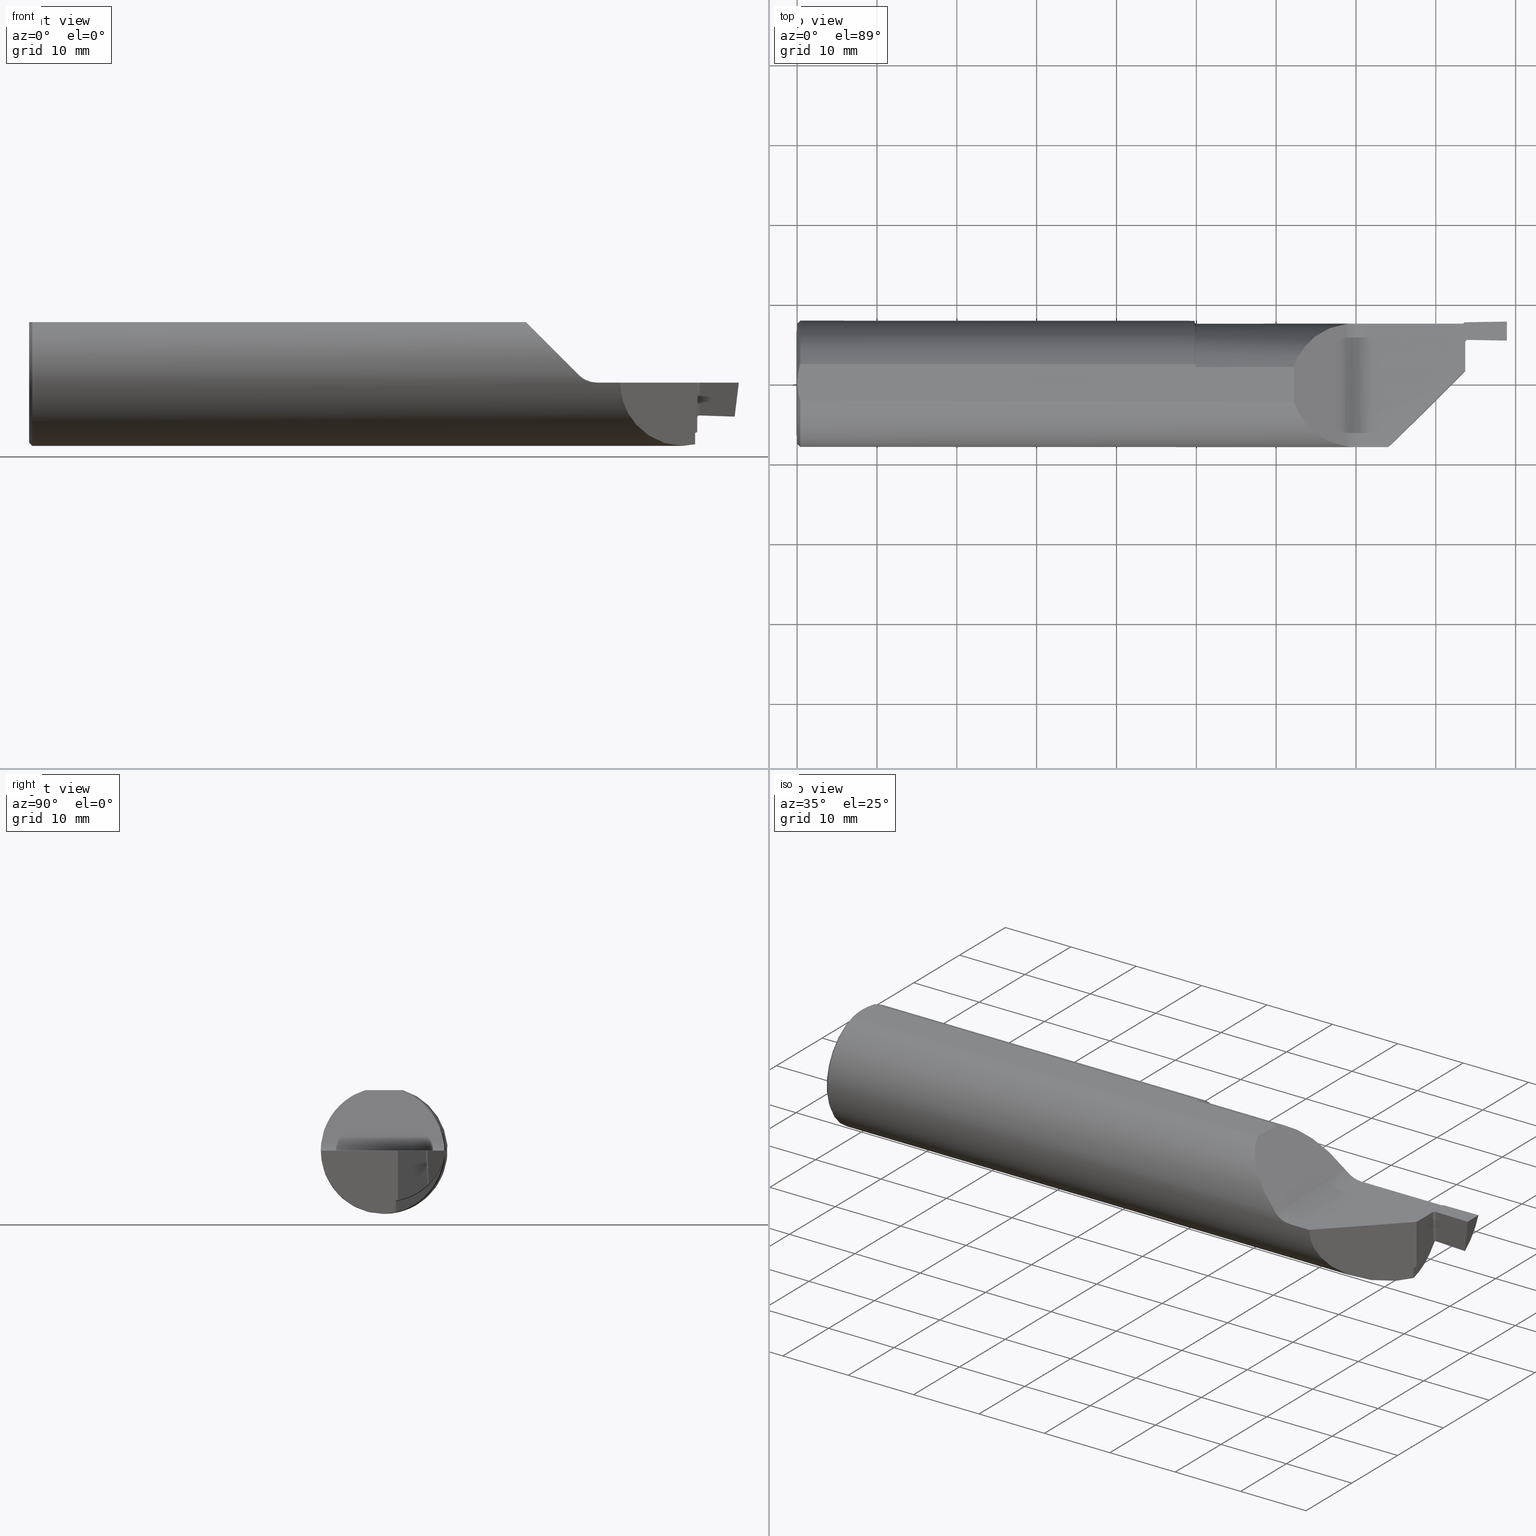
[diagram: canonical four-view strip — front | top / right | iso, engineering-drawing reading convention]
A machine part, canonical four-view strip (front | top / right | iso — engineering-drawing reading convention). The complete STEP part file that produces these views, byte-faithful:
ISO-10303-21;
HEADER;
FILE_DESCRIPTION (( 'STEP AP203' ),
    '1' );
FILE_NAME ('220148-FG625-093.STEP',
    '2024-06-10T23:54:13',
    ( '' ),
    ( '' ),
    'SwSTEP 2.0',
    'SolidWorks 2022',
    '' );
FILE_SCHEMA (( 'CONFIG_CONTROL_DESIGN' ));
ENDSEC;

DATA;
#1 = ADVANCED_FACE ( 'NONE', ( #737 ), #288, .T. ) ;
#2 = CARTESIAN_POINT ( 'NONE',  ( 1.961347162358179741, 0.06790716442675048814, -0.3052300644977108401 ) ) ;
#3 = CARTESIAN_POINT ( 'NONE',  ( 3.305273353677435022, 0.2224118744322242380, -0.1621615816519557107 ) ) ;
#4 = ORIENTED_EDGE ( 'NONE', *, *, #230, .F. ) ;
#5 = FACE_OUTER_BOUND ( 'NONE', #739, .T. ) ;
#6 = EDGE_CURVE ( 'NONE', #345, #322, #250, .T. ) ;
#7 = CARTESIAN_POINT ( 'NONE',  ( 2.914999999999998703, -0.3123499999999999610, 0.000000000000000000 ) ) ;
#8 = AXIS2_PLACEMENT_3D ( 'NONE', #341, #264, #891 ) ;
#9 = ORIENTED_EDGE ( 'NONE', *, *, #716, .F. ) ;
#10 = VECTOR ( 'NONE', #707, 39.37007874015748854 ) ;
#11 = CARTESIAN_POINT ( 'NONE',  ( 2.723503842258455432, 0.2963290950768751042, 0.02563397962624387738 ) ) ;
#12 = CARTESIAN_POINT ( 'NONE',  ( 3.295105066100799007, 0.2127706856238240907, -0.1723945339429047985 ) ) ;
#13 = ORIENTED_EDGE ( 'NONE', *, *, #702, .F. ) ;
#14 = B_SPLINE_CURVE_WITH_KNOTS ( 'NONE', 3,
 ( #597, #396, #612, #68, #677, #53, #337, #551 ),
 .UNSPECIFIED., .F., .F.,
 ( 4, 2, 2, 4 ),
 ( 0.000000000000000000, 0.0002365716475428557980, 0.0003548574713142844559, 0.0004731432950857131681 ),
 .UNSPECIFIED. ) ;
#15 = CARTESIAN_POINT ( 'NONE',  ( 1.967762752467017151, -0.004482219491798915788, -0.3123178384409499575 ) ) ;
#16 = DIRECTION ( 'NONE',  ( -0.7071067811865466846, 0.7071067811865483499, 0.000000000000000000 ) ) ;
#17 = EDGE_LOOP ( 'NONE', ( #550, #628, #521, #578, #236, #141, #516, #410, #160, #453, #194, #13 ) ) ;
#18 = EDGE_CURVE ( 'NONE', #155, #247, #37, .T. ) ;
#19 = PERSON_AND_ORGANIZATION ( #829, #765 ) ;
#20 = CARTESIAN_POINT ( 'NONE',  ( 1.967313356345119502, -0.003896778605827549632, -0.3123257505339309126 ) ) ;
#21 = CARTESIAN_POINT ( 'NONE',  ( 3.294999999999999485, 0.06765000000000002955, -0.2447393642887099041 ) ) ;
#22 =( BOUNDED_CURVE ( )  B_SPLINE_CURVE ( 3, ( #65, #623, #831, #133 ),
 .UNSPECIFIED., .F., .F. ) 
 B_SPLINE_CURVE_WITH_KNOTS ( ( 4, 4 ),
 ( 0.2195200598638573364, 0.8295564977839915421 ),
 .UNSPECIFIED. ) 
 CURVE ( )  GEOMETRIC_REPRESENTATION_ITEM ( )  RATIONAL_B_SPLINE_CURVE ( ( 1.000000000000000000, 0.9692276542533694306, 0.9692276542533694306, 1.000000000000000000 ) ) 
 REPRESENTATION_ITEM ( '' )  );
#23 = VERTEX_POINT ( 'NONE', #243 ) ;
#24 = VECTOR ( 'NONE', #200, 39.37007874015748143 ) ;
#25 = APPROVAL_PERSON_ORGANIZATION ( #355, #210, #156 ) ;
#26 = CARTESIAN_POINT ( 'NONE',  ( 0.01055831307742283523, -0.07746097584156608207, 0.2983500000000000596 ) ) ;
#27 = DIRECTION ( 'NONE',  ( -1.000000000000000000, -0.000000000000000000, -0.000000000000000000 ) ) ;
#28 = ORIENTED_EDGE ( 'NONE', *, *, #448, .F. ) ;
#29 = DIRECTION ( 'NONE',  ( 0.7071067811865439090, 0.000000000000000000, -0.7071067811865511255 ) ) ;
#30 = EDGE_CURVE ( 'NONE', #83, #605, #538, .T. ) ;
#31 = LINE ( 'NONE', #184, #875 ) ;
#32 = DIRECTION ( 'NONE',  ( 0.01745240643727013694, -0.9998476951563916026, 0.000000000000000000 ) ) ;
#33 = CARTESIAN_POINT ( 'NONE',  ( 2.799776695296631868, 0.2973492383597807764, -1.707404996040164512E-17 ) ) ;
#34 = CARTESIAN_POINT ( 'NONE',  ( 3.295001631252468144, 0.2069320694294533025, -0.0003489949022325244087 ) ) ;
#35 = CARTESIAN_POINT ( 'NONE',  ( 3.295106943531388666, 0.2082100252304391608, -0.1754750591462786169 ) ) ;
#36 = ORIENTED_EDGE ( 'NONE', *, *, #109, .F. ) ;
#37 = CIRCLE ( 'NONE', #629, 0.2950000000000000955 ) ;
#38 = VECTOR ( 'NONE', #192, 39.37007874015748143 ) ;
#39 = CC_DESIGN_PERSON_AND_ORGANIZATION_ASSIGNMENT ( #476, #565, ( #370 ) ) ;
#40 = FACE_OUTER_BOUND ( 'NONE', #17, .T. ) ;
#41 = LINE ( 'NONE', #115, #123 ) ;
#42 = ORIENTED_EDGE ( 'NONE', *, *, #18, .F. ) ;
#43 = DIRECTION ( 'NONE',  ( -1.000000000000000000, -0.000000000000000000, -0.000000000000000000 ) ) ;
#44 = CYLINDRICAL_SURFACE ( 'NONE', #511, 0.1250000000000000000 ) ;
#45 = ORIENTED_EDGE ( 'NONE', *, *, #150, .T. ) ;
#46 = ORIENTED_EDGE ( 'NONE', *, *, #67, .F. ) ;
#47 = EDGE_CURVE ( 'NONE', #405, #539, #41, .T. ) ;
#48 = DIRECTION ( 'NONE',  ( 0.7071067811865491270, 0.000000000000000000, -0.7071067811865459074 ) ) ;
#49 = ORIENTED_EDGE ( 'NONE', *, *, #339, .T. ) ;
#50 =( BOUNDED_CURVE ( )  B_SPLINE_CURVE ( 3, ( #316, #108, #234, #445 ),
 .UNSPECIFIED., .F., .T. ) 
 B_SPLINE_CURVE_WITH_KNOTS ( ( 4, 4 ),
 ( 6.136805874074026335, 6.248278722136304530 ),
 .UNSPECIFIED. ) 
 CURVE ( )  GEOMETRIC_REPRESENTATION_ITEM ( )  RATIONAL_B_SPLINE_CURVE ( ( 1.000000000000000000, 0.9989647517244952812, 0.9989647517244952812, 1.000000000000000000 ) ) 
 REPRESENTATION_ITEM ( '' )  );
#51 = LINE ( 'NONE', #60, #24 ) ;
#52 = CIRCLE ( 'NONE', #484, 0.3125000000000003331 ) ;
#53 = CARTESIAN_POINT ( 'NONE',  ( 3.302161169904542781, 0.2220890410617094857, -0.1624349601417328093 ) ) ;
#54 = CIRCLE ( 'NONE', #558, 0.01000000000000016674 ) ;
#55 = CARTESIAN_POINT ( 'NONE',  ( 3.289337345854270289, 0.06198734585427091714, -0.2457490768653617375 ) ) ;
#56 = CARTESIAN_POINT ( 'NONE',  ( 0.001000000000000201249, 5.061904484354354924E-17, 0.2983500000000000041 ) ) ;
#57 = EDGE_CURVE ( 'NONE', #520, #167, #802, .T. ) ;
#58 = CARTESIAN_POINT ( 'NONE',  ( 3.305174524064372843, 0.2167499296919060681, 0.000000000000000000 ) ) ;
#59 = ORIENTED_EDGE ( 'NONE', *, *, #218, .T. ) ;
#60 = CARTESIAN_POINT ( 'NONE',  ( 3.720053754966591519, 0.3111902909404173356, 1.707404996040164512E-17 ) ) ;
#61 = CARTESIAN_POINT ( 'NONE',  ( 3.295001631252468144, 0.2069320694294533025, -0.0003489949022325244087 ) ) ;
#62 = CARTESIAN_POINT ( 'NONE',  ( 3.282738015834710144, 0.2945528774468740840, -0.04189517680245361669 ) ) ;
#63 = ORIENTED_EDGE ( 'NONE', *, *, #6, .T. ) ;
#64 = CARTESIAN_POINT ( 'NONE',  ( 3.284422375343437839, 0.05707237534343790469, -0.2499308611821255688 ) ) ;
#65 = CARTESIAN_POINT ( 'NONE',  ( 3.280359228772169455, 0.2898498865117347112, -0.06805038300324239842 ) ) ;
#66 = ORIENTED_EDGE ( 'NONE', *, *, #860, .F. ) ;
#67 = EDGE_CURVE ( 'NONE', #568, #501, #575, .T. ) ;
#68 = CARTESIAN_POINT ( 'NONE',  ( 3.298467625856308150, 0.2200848426799142943, -0.1643803184429039055 ) ) ;
#69 = DIRECTION ( 'NONE',  ( 0.000000000000000000, 0.000000000000000000, 1.000000000000000000 ) ) ;
#70 = ORIENTED_EDGE ( 'NONE', *, *, #547, .F. ) ;
#71 = CALENDAR_DATE ( 2024, 10, 6 ) ;
#72 = EDGE_CURVE ( 'NONE', #750, #258, #734, .T. ) ;
#73 = CARTESIAN_POINT ( 'NONE',  ( 1.968000000000000416, -0.004482219491799574983, -0.3123178384409500685 ) ) ;
#74 = CARTESIAN_POINT ( 'NONE',  ( 3.305279373889460359, 0.2227567721481766017, -0.1720396644825269716 ) ) ;
#75 = ORIENTED_EDGE ( 'NONE', *, *, #287, .T. ) ;
#76 = DIRECTION ( 'NONE',  ( 0.1218693434051483088, 0.000000000000000000, 0.9925461516413218721 ) ) ;
#77 = CARTESIAN_POINT ( 'NONE',  ( 3.294999999999999485, 0.06765000000000002955, -0.3123500000000000165 ) ) ;
#78 = AXIS2_PLACEMENT_3D ( 'NONE', #834, #126, #119 ) ;
#79 = VERTEX_POINT ( 'NONE', #669 ) ;
#80 = CARTESIAN_POINT ( 'NONE',  ( 0.001000000000000201249, 5.061904484354354924E-17, 0.2983500000000000041 ) ) ;
#81 = CARTESIAN_POINT ( 'NONE',  ( 1.960728097748990928, 0.09246512856206982878, 0.2983499999999997820 ) ) ;
#82 = EDGE_CURVE ( 'NONE', #146, #698, #856, .T. ) ;
#83 = VERTEX_POINT ( 'NONE', #321 ) ;
#84 = DIRECTION ( 'NONE',  ( -1.000000000000000000, -0.000000000000000000, -0.000000000000000000 ) ) ;
#85 = CARTESIAN_POINT ( 'NONE',  ( 1.961795050004579100, 0.08682163519343566449, 0.2983500000000000041 ) ) ;
#86 = ORIENTED_EDGE ( 'NONE', *, *, #30, .F. ) ;
#87 = CARTESIAN_POINT ( 'NONE',  ( 2.791523900243894740, 0.2973492383597807209, -2.254308158834279832E-17 ) ) ;
#88 = CARTESIAN_POINT ( 'NONE',  ( 3.295000216275711491, 0.2067638431675535293, -0.0003548694603778361207 ) ) ;
#89 = EDGE_LOOP ( 'NONE', ( #348, #472, #75, #296 ) ) ;
#90 = VECTOR ( 'NONE', #281, 39.37007874015748854 ) ;
#91 = AXIS2_PLACEMENT_3D ( 'NONE', #360, #622, #557 ) ;
#92 = EDGE_CURVE ( 'NONE', #517, #773, #654, .T. ) ;
#93 = CARTESIAN_POINT ( 'NONE',  ( 2.783262096974776334, 0.2973522559233172102, 0.0008266951744985345579 ) ) ;
#94 = CARTESIAN_POINT ( 'NONE',  ( 1.966597096246990306, 0.07816854141863475991, 0.2983499999999999486 ) ) ;
#95 = CARTESIAN_POINT ( 'NONE',  ( 3.420598946105614324, 0.2205346712176109725, -0.1660501501509080435 ) ) ;
#96 = ADVANCED_FACE ( 'NONE', ( #313 ), #325, .F. ) ;
#97 = B_SPLINE_CURVE_WITH_KNOTS ( 'NONE', 3,
 ( #73, #15, #642, #20, #352, #346, #290, #709, #626, #561, #436, #492, #571, #770, #502, #778, #2, #706, #229, #356, #284, #845 ),
 .UNSPECIFIED., .F., .F.,
 ( 4, 2, 2, 2, 2, 2, 2, 2, 2, 2, 4 ),
 ( 1.970594229852846459E-07, 1.803909044337599873E-05, 3.588112146376670866E-05, 7.156518350454814208E-05, 0.0001429333075861110225, 0.0002856695557492367832, 0.0005711420520754855942, 0.001142087044727985602, 0.002283977030032986050, 0.003425867015337986064, 0.004567757000642986079 ),
 .UNSPECIFIED. ) ;
#98 = FACE_OUTER_BOUND ( 'NONE', #764, .T. ) ;
#99 = DIRECTION ( 'NONE',  ( -1.000000000000000000, -0.000000000000000000, -0.000000000000000000 ) ) ;
#100 = ORIENTED_EDGE ( 'NONE', *, *, #109, .T. ) ;
#101 = ORIENTED_EDGE ( 'NONE', *, *, #67, .T. ) ;
#102 = CARTESIAN_POINT ( 'NONE',  ( 0.01500000000000059272, 0.000000000000000000, -0.3123500000000000165 ) ) ;
#103 = CARTESIAN_POINT ( 'NONE',  ( 3.242794509342262543, 0.01544450934226334303, -0.3116371563912295750 ) ) ;
#104 = CARTESIAN_POINT ( 'NONE',  ( 0.000000000000000000, 0.000000000000000000, 0.000000000000000000 ) ) ;
#105 = VECTOR ( 'NONE', #27, 39.37007874015748143 ) ;
#106 = VECTOR ( 'NONE', #686, 39.37007874015748143 ) ;
#107 = CARTESIAN_POINT ( 'NONE',  ( 3.289824043542131538, 0.3036806033934613125, 4.774952767619148476E-16 ) ) ;
#108 = CARTESIAN_POINT ( 'NONE',  ( 3.295052718374984035, 0.2078422323795701965, -0.08650135121126992233 ) ) ;
#109 = EDGE_CURVE ( 'NONE', #83, #890, #22, .T. ) ;
#110 = CARTESIAN_POINT ( 'NONE',  ( 3.295104440753930053, 0.2127348595256799146, -0.1713684524449969881 ) ) ;
#111 = ORIENTED_EDGE ( 'NONE', *, *, #312, .F. ) ;
#112 =( BOUNDED_CURVE ( )  B_SPLINE_CURVE ( 3, ( #866, #183, #319, #233 ),
 .UNSPECIFIED., .F., .T. ) 
 B_SPLINE_CURVE_WITH_KNOTS ( ( 4, 4 ),
 ( 0.9054803509902414893, 1.558848741908610558 ),
 .UNSPECIFIED. ) 
 CURVE ( )  GEOMETRIC_REPRESENTATION_ITEM ( )  RATIONAL_B_SPLINE_CURVE ( ( 1.000000000000000000, 0.9647410694998077574, 0.9647410694998077574, 1.000000000000000000 ) ) 
 REPRESENTATION_ITEM ( '' )  );
#113 = FACE_OUTER_BOUND ( 'NONE', #688, .T. ) ;
#114 = CC_DESIGN_DATE_AND_TIME_ASSIGNMENT ( #637, #569, ( #694 ) ) ;
#115 = CARTESIAN_POINT ( 'NONE',  ( 3.294999999999999485, 0.06765000000000002955, -0.3123500000000000165 ) ) ;
#116 = ORIENTED_EDGE ( 'NONE', *, *, #367, .T. ) ;
#117 = PERSON_AND_ORGANIZATION ( #829, #765 ) ;
#118 = PLANE ( 'NONE',  #433 ) ;
#119 = DIRECTION ( 'NONE',  ( 0.000000000000000000, 0.000000000000000000, -1.000000000000000000 ) ) ;
#120 = EDGE_LOOP ( 'NONE', ( #735, #480, #159, #28, #794 ) ) ;
#121 = APPROVAL_STATUS ( 'not_yet_approved' ) ;
#122 = EDGE_CURVE ( 'NONE', #517, #494, #240, .T. ) ;
#123 = VECTOR ( 'NONE', #808, 39.37007874015748143 ) ;
#124 = VECTOR ( 'NONE', #452, 39.37007874015748143 ) ;
#125 = CARTESIAN_POINT ( 'NONE',  ( 3.294999999999999485, 0.2067514527403421509, -0.1767612910012261451 ) ) ;
#126 = DIRECTION ( 'NONE',  ( 1.000000000000000000, 0.000000000000000000, 0.000000000000000000 ) ) ;
#127 = ORIENTED_EDGE ( 'NONE', *, *, #617, .F. ) ;
#128 =( NAMED_UNIT ( * ) PLANE_ANGLE_UNIT ( ) SI_UNIT ( $, .RADIAN. ) );
#129 = CARTESIAN_POINT ( 'NONE',  ( 2.585078726976065333, -0.2952889245292886766, 0.1629212730239304185 ) ) ;
#130 = FACE_OUTER_BOUND ( 'NONE', #814, .T. ) ;
#131 = ORIENTED_EDGE ( 'NONE', *, *, #30, .T. ) ;
#132 = FACE_OUTER_BOUND ( 'NONE', #715, .T. ) ;
#133 = CARTESIAN_POINT ( 'NONE',  ( 3.281999999999999584, 0.1958501658244087840, -0.2305099967660120264 ) ) ;
#134 = EDGE_CURVE ( 'NONE', #247, #228, #844, .T. ) ;
#135 = EDGE_LOOP ( 'NONE', ( #101, #640, #729 ) ) ;
#136 = CALENDAR_DATE ( 2024, 10, 6 ) ;
#137 = CARTESIAN_POINT ( 'NONE',  ( 3.294999999999999485, 0.06765000000000002955, 0.000000000000000000 ) ) ;
#138 = CARTESIAN_POINT ( 'NONE',  ( 3.285250365102434067, 0.2961303163305393227, -0.03452692134599399942 ) ) ;
#139 = LOCAL_TIME ( 16, 54, 13.00000000000000000, #680 ) ;
#140 = EDGE_CURVE ( 'NONE', #836, #414, #468, .T. ) ;
#141 = ORIENTED_EDGE ( 'NONE', *, *, #603, .T. ) ;
#142 = DESIGN_CONTEXT ( 'detailed design', #295, 'design' ) ;
#143 = CARTESIAN_POINT ( 'NONE',  ( 1.960000000000000409, 0.3053492383597806725, 0.000000000000000000 ) ) ;
#144 = LINE ( 'NONE', #704, #105 ) ;
#145 =( BOUNDED_CURVE ( )  B_SPLINE_CURVE ( 3, ( #238, #179, #656, #34 ),
 .UNSPECIFIED., .F., .T. ) 
 B_SPLINE_CURVE_WITH_KNOTS ( ( 4, 4 ),
 ( 0.000000000000000000, 1.000000000000000000 ),
 .UNSPECIFIED. ) 
 CURVE ( )  GEOMETRIC_REPRESENTATION_ITEM ( )  RATIONAL_B_SPLINE_CURVE ( ( 1.000000000000000000, 0.8045942050543876123, 0.8045942050543876123, 1.000000000000000000 ) ) 
 REPRESENTATION_ITEM ( '' )  );
#146 = VERTEX_POINT ( 'NONE', #3 ) ;
#147 = DIRECTION ( 'NONE',  ( 1.000000000000000000, 0.000000000000000000, 0.000000000000000000 ) ) ;
#148 = CARTESIAN_POINT ( 'NONE',  ( 3.294999999999999485, 0.2067514527403421509, 0.000000000000000000 ) ) ;
#149 = ORIENTED_EDGE ( 'NONE', *, *, #18, .T. ) ;
#150 = EDGE_CURVE ( 'NONE', #624, #799, #821, .T. ) ;
#151 = CARTESIAN_POINT ( 'NONE',  ( 0.001000000000000263482, 0.01569413818093103735, 0.2983500000000000596 ) ) ;
#152 = DIRECTION ( 'NONE',  ( 0.000000000000000000, -1.000000000000000000, 0.000000000000000000 ) ) ;
#153 = AXIS2_PLACEMENT_3D ( 'NONE', #720, #587, #865 ) ;
#154 = AXIS2_PLACEMENT_3D ( 'NONE', #713, #639, #280 ) ;
#155 = VERTEX_POINT ( 'NONE', #55 ) ;
#156 = APPROVAL_ROLE ( '' ) ;
#157 = DIRECTION ( 'NONE',  ( -0.000000000000000000, -0.000000000000000000, 1.000000000000000000 ) ) ;
#158 = DIRECTION ( 'NONE',  ( 0.000000000000000000, 0.000000000000000000, -1.000000000000000000 ) ) ;
#159 = ORIENTED_EDGE ( 'NONE', *, *, #702, .T. ) ;
#160 = ORIENTED_EDGE ( 'NONE', *, *, #479, .T. ) ;
#161 = DIRECTION ( 'NONE',  ( 0.000000000000000000, 0.000000000000000000, -1.000000000000000000 ) ) ;
#162 = CARTESIAN_POINT ( 'NONE',  ( 0.000000000000000000, 3.641487257264648486E-17, 0.2973499999999995036 ) ) ;
#163 = EDGE_CURVE ( 'NONE', #155, #405, #582, .T. ) ;
#164 = ORIENTED_EDGE ( 'NONE', *, *, #72, .F. ) ;
#165 = DIRECTION ( 'NONE',  ( -0.9998476951563914916, -0.01745240643726934937, 0.000000000000000000 ) ) ;
#166 = CARTESIAN_POINT ( 'NONE',  ( 2.767437696019467985, -0.3123286490856566622, 0.003981597903693289385 ) ) ;
#167 = VERTEX_POINT ( 'NONE', #537 ) ;
#168 = VECTOR ( 'NONE', #812, 39.37007874015748143 ) ;
#169 = CIRCLE ( 'NONE', #541, 0.007999999999999478015 ) ;
#170 = CARTESIAN_POINT ( 'NONE',  ( 1.968000000000000416, -0.01515076164021939703, 0.000000000000000000 ) ) ;
#171 = DIRECTION ( 'NONE',  ( -0.000000000000000000, 1.000000000000000000, 0.000000000000000000 ) ) ;
#172 = DIRECTION ( 'NONE',  ( -0.9998476951563914916, -0.01745240643726934937, 0.000000000000000000 ) ) ;
#173 = CARTESIAN_POINT ( 'NONE',  ( 3.305414319419061275, 0.2304877963612421976, -0.3934609555193290253 ) ) ;
#174 = DIRECTION ( 'NONE',  ( 0.000000000000000000, 0.000000000000000000, 1.000000000000000000 ) ) ;
#175 = B_SPLINE_CURVE_WITH_KNOTS ( 'NONE', 3,
 ( #242, #376, #246, #166, #864, #872, #668, #719, #373, #867 ),
 .UNSPECIFIED., .F., .F.,
 ( 4, 2, 2, 2, 4 ),
 ( 0.000000000000000000, 0.0006200545602135924036, 0.001240109120427184807, 0.001860163680640777211, 0.002480218240854369614 ),
 .UNSPECIFIED. ) ;
#176 = ORIENTED_EDGE ( 'NONE', *, *, #244, .F. ) ;
#177 = CARTESIAN_POINT ( 'NONE',  ( 0.007005465354576248353, -0.06206222481488821857, 0.2983500000000000041 ) ) ;
#178 = EDGE_CURVE ( 'NONE', #705, #665, #590, .T. ) ;
#179 = CARTESIAN_POINT ( 'NONE',  ( 3.299314721643781034, 0.2168522129236241380, -1.107982801318701679E-17 ) ) ;
#180 = DIRECTION ( 'NONE',  ( 0.000000000000000000, 1.000000000000000000, 0.000000000000000000 ) ) ;
#181 = TOROIDAL_SURFACE ( 'NONE', #616, 0.3204999999999999516, 0.008000000000000007105 ) ;
#182 = AXIS2_PLACEMENT_3D ( 'NONE', #572, #780, #158 ) ;
#183 = CARTESIAN_POINT ( 'NONE',  ( 3.484936461241008754, 0.2669028365041609119, -0.1226826780844401110 ) ) ;
#184 = CARTESIAN_POINT ( 'NONE',  ( 2.449649999999997885, 0.09246512856206932918, 0.2983500000000000041 ) ) ;
#185 = CARTESIAN_POINT ( 'NONE',  ( 3.295105284516606670, 0.2112407872110298457, -0.1727529149163833377 ) ) ;
#186 = COORDINATED_UNIVERSAL_TIME_OFFSET ( 8, 0, .BEHIND. ) ;
#187 = DIRECTION ( 'NONE',  ( 0.01745240643726934937, -0.9998476951563914916, 0.000000000000000000 ) ) ;
#188 = CARTESIAN_POINT ( 'NONE',  ( 3.295106118805585904, 0.2097324551900656697, -0.1741218327553339662 ) ) ;
#189 = ADVANCED_FACE ( 'NONE', ( #130 ), #549, .F. ) ;
#190 = ORIENTED_EDGE ( 'NONE', *, *, #743, .F. ) ;
#191 = DATE_AND_TIME ( #601, #253 ) ;
#192 = DIRECTION ( 'NONE',  ( 0.000000000000000000, -1.000000000000000000, 0.000000000000000000 ) ) ;
#193 = CARTESIAN_POINT ( 'NONE',  ( 3.280932724947501988, 0.2928103845563573282, -0.05320293549944549866 ) ) ;
#194 = ORIENTED_EDGE ( 'NONE', *, *, #140, .F. ) ;
#195 = PERSON_AND_ORGANIZATION ( #829, #765 ) ;
#196 = AXIS2_PLACEMENT_3D ( 'NONE', #797, #456, #855 ) ;
#197 = CARTESIAN_POINT ( 'NONE',  ( 2.750000000000000000, -0.4123500000000000498, 0.000000000000000000 ) ) ;
#198 = CARTESIAN_POINT ( 'NONE',  ( 3.293115760701008643, 0.06576576070100911831, -0.2450937001479135680 ) ) ;
#199 = VERTEX_POINT ( 'NONE', #544 ) ;
#200 = DIRECTION ( 'NONE',  ( 0.9998476951563914916, 0.01745240643726934937, 0.000000000000000000 ) ) ;
#201 = DIRECTION ( 'NONE',  ( -0.9998476951563914916, -0.01745240643726934937, 0.000000000000000000 ) ) ;
#202 =( BOUNDED_CURVE ( )  B_SPLINE_CURVE ( 3, ( #412, #129, #548, #402 ),
 .UNSPECIFIED., .F., .T. ) 
 B_SPLINE_CURVE_WITH_KNOTS ( ( 4, 4 ),
 ( 4.829872603322638902, 5.982651106322981249 ),
 .UNSPECIFIED. ) 
 CURVE ( )  GEOMETRIC_REPRESENTATION_ITEM ( )  RATIONAL_B_SPLINE_CURVE ( ( 1.000000000000000000, 0.8922906463574401537, 0.8922906463574401537, 1.000000000000000000 ) ) 
 REPRESENTATION_ITEM ( '' )  );
#203 = CARTESIAN_POINT ( 'NONE',  ( 3.295004131721904539, 0.2070443204245733249, -0.006779410929611328490 ) ) ;
#204 = ORIENTED_EDGE ( 'NONE', *, *, #871, .T. ) ;
#205 = CARTESIAN_POINT ( 'NONE',  ( 2.711388347648312713, 0.2951971671624064042, 0.03661165235168226811 ) ) ;
#206 = FACE_OUTER_BOUND ( 'NONE', #384, .T. ) ;
#207 = CARTESIAN_POINT ( 'NONE',  ( 1.960000000000000409, 0.000000000000000000, 0.000000000000000000 ) ) ;
#208 = ORIENTED_EDGE ( 'NONE', *, *, #581, .F. ) ;
#209 = SECURITY_CLASSIFICATION_LEVEL ( 'unclassified' ) ;
#210 = APPROVAL ( #223, 'UNSPECIFIED' ) ;
#211 = VECTOR ( 'NONE', #152, 39.37007874015748143 ) ;
#212 = DIRECTION ( 'NONE',  ( 1.000000000000000000, 0.000000000000000000, 0.000000000000000000 ) ) ;
#213 = CYLINDRICAL_SURFACE ( 'NONE', #631, 0.2950000000000000955 ) ;
#214 = ORIENTED_EDGE ( 'NONE', *, *, #72, .T. ) ;
#215 = FACE_OUTER_BOUND ( 'NONE', #886, .T. ) ;
#216 = LINE ( 'NONE', #148, #211 ) ;
#217 = EDGE_LOOP ( 'NONE', ( #45, #204, #420, #786 ) ) ;
#218 = EDGE_CURVE ( 'NONE', #869, #857, #478, .T. ) ;
#219 = DATE_AND_TIME ( #71, #139 ) ;
#220 = CARTESIAN_POINT ( 'NONE',  ( 0.007054879162604068242, 0.06230152177692626497, 0.2983500000000000596 ) ) ;
#221 = CARTESIAN_POINT ( 'NONE',  ( 3.725141962085841918, 0.01968710030897397392, 0.04499999999999999833 ) ) ;
#222 = ORIENTED_EDGE ( 'NONE', *, *, #779, .T. ) ;
#223 = APPROVAL_STATUS ( 'not_yet_approved' ) ;
#224 = CARTESIAN_POINT ( 'NONE',  ( 1.960000000000000409, 0.2973492383597806654, 0.000000000000000000 ) ) ;
#225 = CARTESIAN_POINT ( 'NONE',  ( 0.000000000000000000, -0.4123500000000000498, 0.2983500000000000041 ) ) ;
#226 = VECTOR ( 'NONE', #180, 39.37007874015748143 ) ;
#227 = AXIS2_PLACEMENT_3D ( 'NONE', #833, #84, #364 ) ;
#228 = VERTEX_POINT ( 'NONE', #397 ) ;
#229 = CARTESIAN_POINT ( 'NONE',  ( 1.960368899908756068, 0.1101505059355021715, -0.2926523065932738477 ) ) ;
#230 = EDGE_CURVE ( 'NONE', #345, #232, #678, .T. ) ;
#231 = CARTESIAN_POINT ( 'NONE',  ( 3.305174524064372843, 0.2167499296919060681, 0.000000000000000000 ) ) ;
#232 = VERTEX_POINT ( 'NONE', #474 ) ;
#233 = CARTESIAN_POINT ( 'NONE',  ( 3.500000000000000000, 0.3073492383597807298, 9.134616728814879582E-16 ) ) ;
#234 = CARTESIAN_POINT ( 'NONE',  ( 3.295019066269507135, 0.2074719899123484701, -0.03128431169264461742 ) ) ;
#235 = ADVANCED_FACE ( 'NONE', ( #885 ), #746, .F. ) ;
#236 = ORIENTED_EDGE ( 'NONE', *, *, #591, .T. ) ;
#237 =( BOUNDED_CURVE ( )  B_SPLINE_CURVE ( 3, ( #444, #509, #449, #796 ),
 .UNSPECIFIED., .F., .T. ) 
 B_SPLINE_CURVE_WITH_KNOTS ( ( 4, 4 ),
 ( 1.759930763466455383, 2.290906330500971144 ),
 .UNSPECIFIED. ) 
 CURVE ( )  GEOMETRIC_REPRESENTATION_ITEM ( )  RATIONAL_B_SPLINE_CURVE ( ( 1.000000000000000000, 0.9766430873658782374, 0.9766430873658782374, 1.000000000000000000 ) ) 
 REPRESENTATION_ITEM ( '' )  );
#238 = CARTESIAN_POINT ( 'NONE',  ( 3.305174524064372843, 0.2167499296919060681, 5.335640612625514099E-18 ) ) ;
#239 = CARTESIAN_POINT ( 'NONE',  ( 3.479377932124471773, 0.2195751485530464675, -0.1679532648395072325 ) ) ;
#240 = CIRCLE ( 'NONE', #633, 0.2973499999999995036 ) ;
#241 = FACE_OUTER_BOUND ( 'NONE', #789, .T. ) ;
#242 = CARTESIAN_POINT ( 'NONE',  ( 2.799776695296631868, -0.3123499999999999610, 0.000000000000000000 ) ) ;
#243 = CARTESIAN_POINT ( 'NONE',  ( 2.799776695296631868, 0.2973492383597807764, -1.707404996040164512E-17 ) ) ;
#244 = EDGE_CURVE ( 'NONE', #232, #167, #54, .T. ) ;
#245 = CARTESIAN_POINT ( 'NONE',  ( 3.286905776670394186, 0.2976621614907902225, -0.02900729486728608614 ) ) ;
#246 = CARTESIAN_POINT ( 'NONE',  ( 2.783406291026808255, -0.3123529779476911239, 0.0008095237780517812410 ) ) ;
#247 = VERTEX_POINT ( 'NONE', #696 ) ;
#248 = CARTESIAN_POINT ( 'NONE',  ( 2.711388347648312713, 0.2951971671624064042, 0.03661165235168226811 ) ) ;
#249 = B_SPLINE_CURVE_WITH_KNOTS ( 'NONE', 3,
 ( #819, #64, #741, #343, #619, #826 ),
 .UNSPECIFIED., .F., .F.,
 ( 4, 2, 4 ),
 ( 0.000000000000000000, 0.0001244859245940646932, 0.0002489718491881293865 ),
 .UNSPECIFIED. ) ;
#250 = LINE ( 'NONE', #583, #226 ) ;
#251 = ORIENTED_EDGE ( 'NONE', *, *, #448, .T. ) ;
#252 = CIRCLE ( 'NONE', #227, 0.2973499999999995036 ) ;
#253 = LOCAL_TIME ( 16, 54, 13.00000000000000000, #675 ) ;
#254 = APPROVAL_STATUS ( 'not_yet_approved' ) ;
#255 = CARTESIAN_POINT ( 'NONE',  ( 3.285208976217029786, 0.01200804147657545846, 0.04499999999999999833 ) ) ;
#256 = ADVANCED_FACE ( 'NONE', ( #683 ), #777, .T. ) ;
#257 = DIRECTION ( 'NONE',  ( 0.000000000000000000, 0.000000000000000000, -1.000000000000000000 ) ) ;
#258 = VERTEX_POINT ( 'NONE', #463 ) ;
#259 = CARTESIAN_POINT ( 'NONE',  ( 3.222867780507597146, -0.004482219492402646395, -0.3123178384409560637 ) ) ;
#260 = LINE ( 'NONE', #876, #38 ) ;
#261 = DIRECTION ( 'NONE',  ( -0.9999998142845093474, -6.561673074803447047E-16, -0.0006094513490878224540 ) ) ;
#262 = ORIENTED_EDGE ( 'NONE', *, *, #339, .F. ) ;
#263 = B_SPLINE_CURVE_WITH_KNOTS ( 'NONE', 3,
 ( #803, #307, #380, #177, #26, #863 ),
 .UNSPECIFIED., .F., .F.,
 ( 4, 2, 4 ),
 ( 0.009681531988344141068, 0.01085839497132952414, 0.01203525795431490721 ),
 .UNSPECIFIED. ) ;
#264 = DIRECTION ( 'NONE',  ( 0.000000000000000000, 0.000000000000000000, 1.000000000000000000 ) ) ;
#265 = CARTESIAN_POINT ( 'NONE',  ( 3.283613786654524080, 0.05626378665452429206, -0.3043533842527411104 ) ) ;
#266 = DIRECTION ( 'NONE',  ( 0.000000000000000000, 0.000000000000000000, -1.000000000000000000 ) ) ;
#267 = ORIENTED_EDGE ( 'NONE', *, *, #513, .T. ) ;
#268 = FACE_OUTER_BOUND ( 'NONE', #693, .T. ) ;
#269 = AXIS2_PLACEMENT_3D ( 'NONE', #788, #792, #722 ) ;
#270 = CARTESIAN_POINT ( 'NONE',  ( 3.281999999999999584, 0.2973492383597809430, 0.000000000000000000 ) ) ;
#271 = CARTESIAN_POINT ( 'NONE',  ( 3.282000000000060869, 0.2939800508479052943, -0.04576451431438996464 ) ) ;
#272 = ORIENTED_EDGE ( 'NONE', *, *, #274, .F. ) ;
#273 = PERSON_AND_ORGANIZATION ( #829, #765 ) ;
#274 = EDGE_CURVE ( 'NONE', #228, #83, #748, .T. ) ;
#275 = PLANE ( 'NONE',  #804 ) ;
#276 = CARTESIAN_POINT ( 'NONE',  ( 3.295002640477235456, 0.2069879369211263531, -0.003549187647441027962 ) ) ;
#277 = ORIENTED_EDGE ( 'NONE', *, *, #367, .F. ) ;
#278 = CC_DESIGN_PERSON_AND_ORGANIZATION_ASSIGNMENT ( #19, #759, ( #694 ) ) ;
#279 = CALENDAR_DATE ( 2024, 10, 6 ) ;
#280 = DIRECTION ( 'NONE',  ( 0.000000000000000000, 0.000000000000000000, 1.000000000000000000 ) ) ;
#281 = DIRECTION ( 'NONE',  ( -0.9998476951563912696, 0.01745240643727496294, -0.000000000000000000 ) ) ;
#282 = ORIENTED_EDGE ( 'NONE', *, *, #297, .F. ) ;
#283 = SHAPE_DEFINITION_REPRESENTATION ( #391, #666 ) ;
#284 = CARTESIAN_POINT ( 'NONE',  ( 1.960000000000000409, 0.1501376569286136109, -0.2742910705252852854 ) ) ;
#285 = AXIS2_PLACEMENT_3D ( 'NONE', #514, #43, #858 ) ;
#286 = CARTESIAN_POINT ( 'NONE',  ( 3.500000000000000000, 0.3073492383597807298, 9.134616728814879582E-16 ) ) ;
#287 = EDGE_CURVE ( 'NONE', #167, #539, #216, .T. ) ;
#288 = CONICAL_SURFACE ( 'NONE', #431, 0.2973499999999995036, 0.7853981633974460586 ) ;
#289 = ORIENTED_EDGE ( 'NONE', *, *, #479, .F. ) ;
#290 = CARTESIAN_POINT ( 'NONE',  ( 1.966790529255113551, -0.002606986316049827307, -0.3123394367519735648 ) ) ;
#291 = PLANE ( 'NONE',  #614 ) ;
#292 = ORIENTED_EDGE ( 'NONE', *, *, #860, .T. ) ;
#293 = LINE ( 'NONE', #224, #415 ) ;
#294 = CARTESIAN_POINT ( 'NONE',  ( 3.299236175191095910, 0.2168535839570556456, 0.000000000000000000 ) ) ;
#295 = APPLICATION_CONTEXT ( 'configuration controlled 3d designs of mechanical parts and assemblies' ) ;
#296 = ORIENTED_EDGE ( 'NONE', *, *, #47, .F. ) ;
#297 = EDGE_CURVE ( 'NONE', #840, #773, #893, .T. ) ;
#298 = CYLINDRICAL_SURFACE ( 'NONE', #383, 0.01000000000000016674 ) ;
#299 = CARTESIAN_POINT ( 'NONE',  ( 3.284422375343437839, 0.05707237534343819613, -0.3044255804321501224 ) ) ;
#300 = TOROIDAL_SURFACE ( 'NONE', #599, 0.3000000000000000999, 0.005000000000000000104 ) ;
#301 = LOCAL_TIME ( 16, 54, 13.00000000000000000, #186 ) ;
#302 = ORIENTED_EDGE ( 'NONE', *, *, #6, .F. ) ;
#303 = ADVANCED_FACE ( 'NONE', ( #437 ), #767, .F. ) ;
#304 = CARTESIAN_POINT ( 'NONE',  ( 3.289629226428816278, 0.3027671276434286685, -0.005895329463964080197 ) ) ;
#305 = CARTESIAN_POINT ( 'NONE',  ( 1.965045845949033199, 0.07966238764679994810, 0.2983500000000000596 ) ) ;
#306 = ORIENTED_EDGE ( 'NONE', *, *, #874, .T. ) ;
#307 = CARTESIAN_POINT ( 'NONE',  ( 0.001000000000000257410, -0.01567344482694200958, 0.2983500000000000041 ) ) ;
#308 = CARTESIAN_POINT ( 'NONE',  ( 0.000000000000000000, 0.09246512856206932918, 0.2983500000000000041 ) ) ;
#309 = CARTESIAN_POINT ( 'NONE',  ( 3.290208214692811772, 0.01209530350876180868, 0.04499999999999999833 ) ) ;
#310 = CARTESIAN_POINT ( 'NONE',  ( 3.288328160609046424, 0.2997734514478421208, -0.02043238156974961500 ) ) ;
#311 = FACE_OUTER_BOUND ( 'NONE', #120, .T. ) ;
#312 = EDGE_CURVE ( 'NONE', #199, #650, #144, .T. ) ;
#313 = FACE_OUTER_BOUND ( 'NONE', #89, .T. ) ;
#314 = CIRCLE ( 'NONE', #154, 0.3125000000000003331 ) ;
#315 = FACE_OUTER_BOUND ( 'NONE', #217, .T. ) ;
#316 = CARTESIAN_POINT ( 'NONE',  ( 3.295106943531388666, 0.2082100252304391608, -0.1754750591462786169 ) ) ;
#317 = ORIENTED_EDGE ( 'NONE', *, *, #408, .F. ) ;
#318 = EDGE_LOOP ( 'NONE', ( #723, #657, #9, #897, #853 ) ) ;
#319 = CARTESIAN_POINT ( 'NONE',  ( 3.492061712608963475, 0.2972301759951059275, -0.06465216255741298990 ) ) ;
#320 = DIRECTION ( 'NONE',  ( 0.000000000000000000, -1.000000000000000000, 0.000000000000000000 ) ) ;
#321 = CARTESIAN_POINT ( 'NONE',  ( 3.280359228772169455, 0.2898498865117347112, -0.06805038300324239842 ) ) ;
#322 = VERTEX_POINT ( 'NONE', #286 ) ;
#323 = ADVANCED_FACE ( 'NONE', ( #559 ), #291, .F. ) ;
#324 = CARTESIAN_POINT ( 'NONE',  ( 0.000000000000000000, 0.000000000000000000, -0.2973499999999995036 ) ) ;
#325 = PLANE ( 'NONE',  #153 ) ;
#326 = AXIS2_PLACEMENT_3D ( 'NONE', #584, #455, #29 ) ;
#327 = ADVANCED_FACE ( 'NONE', ( #423 ), #771, .F. ) ;
#328 = DIRECTION ( 'NONE',  ( 0.000000000000000000, 0.000000000000000000, -1.000000000000000000 ) ) ;
#329 = CARTESIAN_POINT ( 'NONE',  ( 2.625000000000000000, -0.004482219491794909444, -0.3123178384409500685 ) ) ;
#330 = EDGE_LOOP ( 'NONE', ( #832, #251 ) ) ;
#331 = CC_DESIGN_PERSON_AND_ORGANIZATION_ASSIGNMENT ( #555, #641, ( #370 ) ) ;
#332 = DIRECTION ( 'NONE',  ( -1.000000000000000000, -0.000000000000000000, -0.000000000000000000 ) ) ;
#333 = CARTESIAN_POINT ( 'NONE',  ( 3.281294126870847983, 0.2934321724897325789, -0.04946533108392788675 ) ) ;
#334 = ORIENTED_EDGE ( 'NONE', *, *, #663, .T. ) ;
#335 = B_SPLINE_CURVE_WITH_KNOTS ( 'NONE', 3,
 ( #353, #772, #634, #429, #852, #299 ),
 .UNSPECIFIED., .F., .F.,
 ( 4, 2, 4 ),
 ( 1.554397003166697744E-05, 0.002037439523156151042, 0.004059335076280635307 ),
 .UNSPECIFIED. ) ;
#336 =( LENGTH_UNIT ( ) NAMED_UNIT ( * ) SI_UNIT ( $, .METRE. ) );
#337 = CARTESIAN_POINT ( 'NONE',  ( 3.303709968765986549, 0.2224372972671671833, -0.1621081502414332409 ) ) ;
#338 = CARTESIAN_POINT ( 'NONE',  ( 2.711388347648313157, 0.4123500000000000498, 0.03661165235168205301 ) ) ;
#339 = EDGE_CURVE ( 'NONE', #698, #345, #434, .T. ) ;
#340 = ORIENTED_EDGE ( 'NONE', *, *, #871, .F. ) ;
#341 = CARTESIAN_POINT ( 'NONE',  ( 0.000000000000000000, 0.000000000000000000, 0.000000000000000000 ) ) ;
#342 = AXIS2_PLACEMENT_3D ( 'NONE', #685, #809, #881 ) ;
#343 = CARTESIAN_POINT ( 'NONE',  ( 3.287062239065738023, 0.05971223906573858847, -0.2465248279514601626 ) ) ;
#344 = DIRECTION ( 'NONE',  ( 0.000000000000000000, 0.000000000000000000, -1.000000000000000000 ) ) ;
#345 = VERTEX_POINT ( 'NONE', #784 ) ;
#346 = CARTESIAN_POINT ( 'NONE',  ( 1.966932488357366005, -0.003051807244517923401, -0.3123353797966956225 ) ) ;
#347 = DIRECTION ( 'NONE',  ( -1.000000000000000000, 0.000000000000000000, 0.000000000000000000 ) ) ;
#348 = ORIENTED_EDGE ( 'NONE', *, *, #849, .T. ) ;
#349 = DATE_AND_TIME ( #136, #878 ) ;
#350 = B_SPLINE_CURVE_WITH_KNOTS ( 'NONE', 3,
 ( #518, #800, #791, #458 ),
 .UNSPECIFIED., .F., .F.,
 ( 4, 4 ),
 ( 0.006483673101505866773, 0.008452642523591418280 ),
 .UNSPECIFIED. ) ;
#351 = EDGE_CURVE ( 'NONE', #773, #843, #848, .T. ) ;
#352 = CARTESIAN_POINT ( 'NONE',  ( 1.967211019143644046, -0.003689047498845545586, -0.3123282865089277993 ) ) ;
#353 = CARTESIAN_POINT ( 'NONE',  ( 3.281999999999999584, 0.1958501658244087840, -0.2305099967660120264 ) ) ;
#354 = ORIENTED_EDGE ( 'NONE', *, *, #811, .F. ) ;
#355 = PERSON_AND_ORGANIZATION ( #829, #765 ) ;
#356 = CARTESIAN_POINT ( 'NONE',  ( 1.960064105020415504, 0.1371422438581685610, -0.2810169237995415181 ) ) ;
#357 = CARTESIAN_POINT ( 'NONE',  ( 3.299341025016182982, 0.2228604264133262070, -0.1720396644825269716 ) ) ;
#358 = ORIENTED_EDGE ( 'NONE', *, *, #57, .F. ) ;
#359 = CC_DESIGN_DATE_AND_TIME_ASSIGNMENT ( #191, #465, ( #882 ) ) ;
#360 = CARTESIAN_POINT ( 'NONE',  ( 3.305414319419061275, 0.2304877963612421976, -0.3934609555193290253 ) ) ;
#361 = CARTESIAN_POINT ( 'NONE',  ( 1.961168654006056222, 0.08963362299606143779, 0.2983500000000000596 ) ) ;
#362 = ORIENTED_EDGE ( 'NONE', *, *, #779, .F. ) ;
#363 = COORDINATED_UNIVERSAL_TIME_OFFSET ( 8, 0, .BEHIND. ) ;
#364 = DIRECTION ( 'NONE',  ( 0.000000000000000000, 0.000000000000000000, -1.000000000000000000 ) ) ;
#365 = CARTESIAN_POINT ( 'NONE',  ( 0.01500000000000059099, 0.000000000000000000, 0.000000000000000000 ) ) ;
#366 = ORIENTED_EDGE ( 'NONE', *, *, #375, .F. ) ;
#367 = EDGE_CURVE ( 'NONE', #890, #79, #335, .T. ) ;
#368 = CARTESIAN_POINT ( 'NONE',  ( 3.287940530698914454, 0.2990942634218489160, -0.02331952688164838985 ) ) ;
#369 = CARTESIAN_POINT ( 'NONE',  ( 1.963855792650271992, 0.08146448514599555213, 0.2983500000000000596 ) ) ;
#370 = PRODUCT_DEFINITION_FORMATION_WITH_SPECIFIED_SOURCE ( 'ANY', '', #813, .NOT_KNOWN. ) ;
#371 = ORIENTED_EDGE ( 'NONE', *, *, #470, .T. ) ;
#372 = CARTESIAN_POINT ( 'NONE',  ( 3.285250365102434067, 0.2961303163305393227, -0.03452692134599399942 ) ) ;
#373 = CARTESIAN_POINT ( 'NONE',  ( 2.717205864027919304, -0.3108835129758812377, 0.03079413597207513245 ) ) ;
#374 = ORIENTED_EDGE ( 'NONE', *, *, #769, .F. ) ;
#375 = EDGE_CURVE ( 'NONE', #869, #199, #673, .T. ) ;
#376 = CARTESIAN_POINT ( 'NONE',  ( 2.791522665335699482, -0.3123499999999999055, 1.500648922300925238E-19 ) ) ;
#377 = ORIENTED_EDGE ( 'NONE', *, *, #274, .T. ) ;
#378 = ORIENTED_EDGE ( 'NONE', *, *, #663, .F. ) ;
#379 = B_SPLINE_CURVE_WITH_KNOTS ( 'NONE', 3,
 ( #489, #632, #11, #718, #659, #730, #667, #93, #87, #33 ),
 .UNSPECIFIED., .F., .F.,
 ( 4, 2, 2, 2, 4 ),
 ( 0.000000000000000000, 0.0006199328346996068641, 0.001239865669399213728, 0.001859798504098820592, 0.002479731338798427456 ),
 .UNSPECIFIED. ) ;
#380 = CARTESIAN_POINT ( 'NONE',  ( 0.002241371057115561661, -0.03121634298977672001, 0.2983500000000000596 ) ) ;
#381 = CARTESIAN_POINT ( 'NONE',  ( 3.262565381986556545, 0.03521538198655656260, -0.3090583107218931036 ) ) ;
#382 = DIRECTION ( 'NONE',  ( 0.9998476951563914916, 0.01745240643726934937, -0.000000000000000000 ) ) ;
#383 = AXIS2_PLACEMENT_3D ( 'NONE', #497, #157, #147 ) ;
#384 = EDGE_LOOP ( 'NONE', ( #439, #190, #847, #111, #378, #399, #176, #4, #63, #475 ) ) ;
#385 = DIRECTION ( 'NONE',  ( 0.000000000000000000, 0.000000000000000000, 1.000000000000000000 ) ) ;
#386 = DIMENSIONAL_EXPONENTS ( 1.000000000000000000, 0.000000000000000000, 0.000000000000000000, 0.000000000000000000, 0.000000000000000000, 0.000000000000000000, 0.000000000000000000 ) ;
#387 = CARTESIAN_POINT ( 'NONE',  ( 1.965498212798423294, 0.07909074338581854879, 0.2983499999999999486 ) ) ;
#388 = DIRECTION ( 'NONE',  ( 1.000000000000000000, 0.000000000000000000, 0.000000000000000000 ) ) ;
#389 = ADVANCED_FACE ( 'NONE', ( #627 ), #213, .T. ) ;
#390 = ORIENTED_EDGE ( 'NONE', *, *, #807, .T. ) ;
#391 = PRODUCT_DEFINITION_SHAPE ( 'NONE', 'NONE',  #882 ) ;
#392 = LENGTH_MEASURE_WITH_UNIT ( LENGTH_MEASURE( 0.02539999999999999897 ), #336 );
#393 = CARTESIAN_POINT ( 'NONE',  ( 3.295104440753930053, 0.2127348595256799146, -0.1713684524449969881 ) ) ;
#394 = ORIENTED_EDGE ( 'NONE', *, *, #134, .T. ) ;
#395 = PERSON_AND_ORGANIZATION_ROLE ( 'creator' ) ;
#396 = CARTESIAN_POINT ( 'NONE',  ( 3.295103151387160700, 0.2150179744867316833, -0.1692528339769729107 ) ) ;
#397 = CARTESIAN_POINT ( 'NONE',  ( 3.282000000000060869, 0.2939800508479052943, -0.04576451431438996464 ) ) ;
#398 = AXIS2_PLACEMENT_3D ( 'NONE', #365, #486, #700 ) ;
#399 = ORIENTED_EDGE ( 'NONE', *, *, #287, .F. ) ;
#400 = APPROVAL_ROLE ( '' ) ;
#401 = VECTOR ( 'NONE', #48, 39.37007874015748143 ) ;
#402 = CARTESIAN_POINT ( 'NONE',  ( 2.449649999999997885, -0.09246512856206932918, 0.2983500000000000041 ) ) ;
#403 = CARTESIAN_POINT ( 'NONE',  ( 3.280444307417091920, 0.2914292046428632044, -0.06065759792747587448 ) ) ;
#404 = APPLICATION_CONTEXT ( 'configuration controlled 3d designs of mechanical parts and assemblies' ) ;
#405 = VERTEX_POINT ( 'NONE', #21 ) ;
#406 = APPROVAL_DATE_TIME ( #815, #625 ) ;
#407 = CARTESIAN_POINT ( 'NONE',  ( 3.284422375343437839, 0.05707237534343819613, -0.3044255804321501224 ) ) ;
#408 = EDGE_CURVE ( 'NONE', #494, #573, #493, .T. ) ;
#409 = DIRECTION ( 'NONE',  ( -0.0006094513490878223456, 0.000000000000000000, 0.9999998142845092364 ) ) ;
#410 = ORIENTED_EDGE ( 'NONE', *, *, #351, .T. ) ;
#411 = CARTESIAN_POINT ( 'NONE',  ( 2.585200142108180721, 0.2803107822912631053, 0.1627998578918155581 ) ) ;
#412 = CARTESIAN_POINT ( 'NONE',  ( 2.711388347648313157, -0.3101968881405479106, 0.03661165235168182402 ) ) ;
#413 = CARTESIAN_POINT ( 'NONE',  ( 3.295240011630399479, 0.2205017098368942385, -0.3938158249797066857 ) ) ;
#414 = VERTEX_POINT ( 'NONE', #775 ) ;
#415 = VECTOR ( 'NONE', #837, 39.37007874015748143 ) ;
#416 = B_SPLINE_CURVE_WITH_KNOTS ( 'NONE', 3,
 ( #372, #725, #245, #368, #310, #652, #304, #107 ),
 .UNSPECIFIED., .F., .F.,
 ( 4, 2, 2, 4 ),
 ( 9.601482099219649054E-06, 0.0002362980301693581072, 0.0004629945782394965332, 0.0009163876743797684521 ),
 .UNSPECIFIED. ) ;
#417 = CC_DESIGN_APPROVAL ( #625, ( #882 ) ) ;
#418 = CARTESIAN_POINT ( 'NONE',  ( 3.295106943531388666, 0.2082100252304391608, -0.1754750591462786169 ) ) ;
#419 = DIRECTION ( 'NONE',  ( -1.000000000000000000, -0.000000000000000000, -0.000000000000000000 ) ) ;
#420 = ORIENTED_EDGE ( 'NONE', *, *, #470, .F. ) ;
#421 = EDGE_CURVE ( 'NONE', #636, #750, #427, .T. ) ;
#422 = PLANE ( 'NONE',  #717 ) ;
#423 = FACE_OUTER_BOUND ( 'NONE', #461, .T. ) ;
#424 = ORIENTED_EDGE ( 'NONE', *, *, #603, .F. ) ;
#425 = APPROVAL_DATE_TIME ( #349, #210 ) ;
#426 = EDGE_CURVE ( 'NONE', #568, #705, #50, .T. ) ;
#427 = B_SPLINE_CURVE_WITH_KNOTS ( 'NONE', 3,
 ( #81, #361, #85, #714, #369, #305, #387, #94, #593, #506 ),
 .UNSPECIFIED., .F., .F.,
 ( 4, 2, 2, 2, 4 ),
 ( 0.002052484508306465314, 0.002269510432392931112, 0.002378023394436168132, 0.002432279875457780786, 0.002486536356479393875 ),
 .UNSPECIFIED. ) ;
#428 = CARTESIAN_POINT ( 'NONE',  ( 3.479377932124471773, 0.2195751485530464675, -0.1679532648395072325 ) ) ;
#429 = CARTESIAN_POINT ( 'NONE',  ( 3.283537498836868629, 0.1077669164526932205, -0.2886833235376979334 ) ) ;
#430 = ORIENTED_EDGE ( 'NONE', *, *, #487, .T. ) ;
#431 = AXIS2_PLACEMENT_3D ( 'NONE', #104, #589, #257 ) ;
#432 = PLANE ( 'NONE',  #91 ) ;
#433 = AXIS2_PLACEMENT_3D ( 'NONE', #197, #477, #471 ) ;
#434 = LINE ( 'NONE', #643, #10 ) ;
#435 = ORIENTED_EDGE ( 'NONE', *, *, #47, .T. ) ;
#436 = CARTESIAN_POINT ( 'NONE',  ( 1.965429668006681618, 0.004185134267808203641, -0.3123273330972310413 ) ) ;
#437 = FACE_OUTER_BOUND ( 'NONE', #469, .T. ) ;
#438 = ADVANCED_FACE ( 'NONE', ( #311 ), #181, .F. ) ;
#439 = ORIENTED_EDGE ( 'NONE', *, *, #564, .F. ) ;
#440 = ORIENTED_EDGE ( 'NONE', *, *, #807, .F. ) ;
#441 = CARTESIAN_POINT ( 'NONE',  ( 0.01500000000000059099, 0.09246512856206932918, 0.2983500000000000041 ) ) ;
#442 = DIRECTION ( 'NONE',  ( 0.7071067811865491270, 8.659560562354913137E-17, 0.7071067811865459074 ) ) ;
#443 = ORIENTED_EDGE ( 'NONE', *, *, #676, .T. ) ;
#444 = CARTESIAN_POINT ( 'NONE',  ( 3.294999999999999485, 0.06765000000000002955, -0.2447393642887099041 ) ) ;
#445 = CARTESIAN_POINT ( 'NONE',  ( 3.295006091729809405, 0.2071004477074011307, -0.009995430623661658368 ) ) ;
#446 = ORIENTED_EDGE ( 'NONE', *, *, #163, .F. ) ;
#447 = VECTOR ( 'NONE', #827, 39.37007874015748143 ) ;
#448 = EDGE_CURVE ( 'NONE', #414, #836, #747, .T. ) ;
#449 = CARTESIAN_POINT ( 'NONE',  ( 3.294999999999999485, 0.1670272245190704552, -0.2116045608424483304 ) ) ;
#450 = CARTESIAN_POINT ( 'NONE',  ( 3.281999999999999584, -0.01515076164021939703, 0.000000000000000000 ) ) ;
#451 = CARTESIAN_POINT ( 'NONE',  ( 0.000000000000000000, 0.000000000000000000, -0.2973499999999995036 ) ) ;
#452 = DIRECTION ( 'NONE',  ( -0.0006090802009083879243, -0.03489418134011375294, 0.9993908270190957621 ) ) ;
#453 = ORIENTED_EDGE ( 'NONE', *, *, #785, .F. ) ;
#454 = ORIENTED_EDGE ( 'NONE', *, *, #163, .T. ) ;
#455 = DIRECTION ( 'NONE',  ( 0.7071067811865511255, -0.000000000000000000, 0.7071067811865439090 ) ) ;
#456 = DIRECTION ( 'NONE',  ( -1.000000000000000000, -0.000000000000000000, -0.000000000000000000 ) ) ;
#457 = EDGE_CURVE ( 'NONE', #650, #624, #175, .T. ) ;
#458 = CARTESIAN_POINT ( 'NONE',  ( 1.960728097748990928, 0.09246512856206982878, 0.2983499999999997820 ) ) ;
#459 = LINE ( 'NONE', #308, #498 ) ;
#460 = ADVANCED_FACE ( 'NONE', ( #113 ), #44, .F. ) ;
#461 = EDGE_LOOP ( 'NONE', ( #443, #292, #553, #782, #70 ) ) ;
#462 = CARTESIAN_POINT ( 'NONE',  ( 3.284422375343437395, 0.05707237534343791163, 0.04499999999999999833 ) ) ;
#463 = CARTESIAN_POINT ( 'NONE',  ( 2.449649999999997885, 0.07781981166122939331, 0.2983500000000000041 ) ) ;
#464 = ORIENTED_EDGE ( 'NONE', *, *, #576, .T. ) ;
#465 = DATE_TIME_ROLE ( 'creation_date' ) ;
#466 = CARTESIAN_POINT ( 'NONE',  ( 3.295035994903928955, 0.2077288021286784192, -0.1759016940810605167 ) ) ;
#467 = CARTESIAN_POINT ( 'NONE',  ( 3.295006091729809405, 0.2071004477074011307, -0.009995430623661658368 ) ) ;
#468 = CIRCLE ( 'NONE', #731, 0.3123500000000000165 ) ;
#469 = EDGE_LOOP ( 'NONE', ( #164, #708, #289, #754, #390, #424, #371 ) ) ;
#470 = EDGE_CURVE ( 'NONE', #880, #258, #31, .T. ) ;
#471 = DIRECTION ( 'NONE',  ( -1.000000000000000000, 0.000000000000000000, -0.000000000000000000 ) ) ;
#472 = ORIENTED_EDGE ( 'NONE', *, *, #57, .T. ) ;
#473 = CARTESIAN_POINT ( 'NONE',  ( 3.282806387414588301, 0.05545638741458839421, -0.3044200468244065427 ) ) ;
#474 = CARTESIAN_POINT ( 'NONE',  ( 3.305174524064372843, 0.2167499296919060681, 5.335640612625514099E-18 ) ) ;
#475 = ORIENTED_EDGE ( 'NONE', *, *, #874, .F. ) ;
#476 = PERSON_AND_ORGANIZATION ( #829, #765 ) ;
#477 = DIRECTION ( 'NONE',  ( 0.000000000000000000, 0.000000000000000000, -1.000000000000000000 ) ) ;
#478 = LINE ( 'NONE', #329, #447 ) ;
#479 = EDGE_CURVE ( 'NONE', #843, #636, #459, .T. ) ;
#480 = ORIENTED_EDGE ( 'NONE', *, *, #811, .T. ) ;
#481 = UNCERTAINTY_MEASURE_WITH_UNIT (LENGTH_MEASURE( 1.000000000000000082E-05 ), #606, 'distance_accuracy_value', 'NONE');
#482 = VECTOR ( 'NONE', #604, 39.37007874015748143 ) ;
#483 = COORDINATED_UNIVERSAL_TIME_OFFSET ( 8, 0, .BEHIND. ) ;
#484 = AXIS2_PLACEMENT_3D ( 'NONE', #450, #99, #671 ) ;
#485 = CARTESIAN_POINT ( 'NONE',  ( 1.968000000000000416, 0.07781981166122896310, 0.2983500000000000041 ) ) ;
#486 = DIRECTION ( 'NONE',  ( 1.000000000000000000, 0.000000000000000000, 0.000000000000000000 ) ) ;
#487 = EDGE_CURVE ( 'NONE', #890, #850, #52, .T. ) ;
#488 = ORIENTED_EDGE ( 'NONE', *, *, #645, .F. ) ;
#489 = CARTESIAN_POINT ( 'NONE',  ( 2.711388347648312713, 0.2951971671624064042, 0.03661165235168226811 ) ) ;
#490 = ORIENTED_EDGE ( 'NONE', *, *, #457, .F. ) ;
#491 = APPROVAL_DATE_TIME ( #219, #749 ) ;
#492 = CARTESIAN_POINT ( 'NONE',  ( 1.964719845097705253, 0.009679807099238829302, -0.3122214714403780400 ) ) ;
#493 = LINE ( 'NONE', #162, #822 ) ;
#494 = VERTEX_POINT ( 'NONE', #580 ) ;
#495 = EDGE_CURVE ( 'NONE', #232, #665, #145, .T. ) ;
#496 = AXIS2_PLACEMENT_3D ( 'NONE', #225, #710, #577 ) ;
#497 = CARTESIAN_POINT ( 'NONE',  ( 3.304999999999999716, 0.2067514527403421509, -0.3123500000000000165 ) ) ;
#498 = VECTOR ( 'NONE', #801, 39.37007874015748143 ) ;
#499 = CARTESIAN_POINT ( 'NONE',  ( 3.222867780507597146, -0.004482219492402646395, -0.3123178384409560637 ) ) ;
#500 = ORIENTED_EDGE ( 'NONE', *, *, #769, .T. ) ;
#501 = VERTEX_POINT ( 'NONE', #393 ) ;
#502 = CARTESIAN_POINT ( 'NONE',  ( 1.962978368751124858, 0.03172692508847087950, -0.3108210889647209374 ) ) ;
#503 = DIRECTION ( 'NONE',  ( 0.01745240643726884283, -0.9998476951563914916, 0.000000000000000000 ) ) ;
#504 = EDGE_LOOP ( 'NONE', ( #818, #208, #658, #454, #435, #334, #366, #545 ) ) ;
#505 = CARTESIAN_POINT ( 'NONE',  ( 0.01500000000000059099, 0.09246512856206932918, 0.2983500000000000041 ) ) ;
#506 = CARTESIAN_POINT ( 'NONE',  ( 1.968000000000000416, 0.07781981166122896310, 0.2983500000000000041 ) ) ;
#507 = ADVANCED_FACE ( 'NONE', ( #585 ), #586, .F. ) ;
#508 = ORIENTED_EDGE ( 'NONE', *, *, #150, .F. ) ;
#509 = CARTESIAN_POINT ( 'NONE',  ( 3.294999999999999485, 0.1195511797763538220, -0.2348058285886928387 ) ) ;
#510 = AXIS2_PLACEMENT_3D ( 'NONE', #664, #172, #32 ) ;
#511 = AXIS2_PLACEMENT_3D ( 'NONE', #653, #320, #524 ) ;
#512 = EDGE_LOOP ( 'NONE', ( #116, #701, #615 ) ) ;
#513 = EDGE_CURVE ( 'NONE', #850, #869, #610, .T. ) ;
#514 = CARTESIAN_POINT ( 'NONE',  ( 3.281999999999999584, -0.01515076164021940570, 0.000000000000000000 ) ) ;
#515 = CARTESIAN_POINT ( 'NONE',  ( 3.281999999999999584, 0.05465000000000021230, -0.3046048319945784955 ) ) ;
#516 = ORIENTED_EDGE ( 'NONE', *, *, #297, .T. ) ;
#517 = VERTEX_POINT ( 'NONE', #324 ) ;
#518 = CARTESIAN_POINT ( 'NONE',  ( 1.960000000000000409, 0.1626380916929897891, 0.2666671588899965362 ) ) ;
#519 = DIRECTION ( 'NONE',  ( -1.000000000000000000, -0.000000000000000000, -0.000000000000000000 ) ) ;
#520 = VERTEX_POINT ( 'NONE', #859 ) ;
#521 = ORIENTED_EDGE ( 'NONE', *, *, #312, .T. ) ;
#522 = CARTESIAN_POINT ( 'NONE',  ( 0.01499999999999581182, -0.09246512856207692033, 0.2983500000000000041 ) ) ;
#523 = ADVANCED_FACE ( 'NONE', ( #40 ), #727, .T. ) ;
#524 = DIRECTION ( 'NONE',  ( 0.000000000000000000, 0.000000000000000000, -1.000000000000000000 ) ) ;
#525 = CARTESIAN_POINT ( 'NONE',  ( 1.960000000000000409, 0.07781981166122950433, 0.2983500000000000041 ) ) ;
#526 = APPROVAL_PERSON_ORGANIZATION ( #744, #749, #400 ) ;
#527 = ORIENTED_EDGE ( 'NONE', *, *, #426, .T. ) ;
#528 = APPROVAL_ROLE ( '' ) ;
#529 = DIRECTION ( 'NONE',  ( -0.000000000000000000, -0.000000000000000000, 1.000000000000000000 ) ) ;
#530 = CARTESIAN_POINT ( 'NONE',  ( 3.294999999999999485, 0.2067514527403421509, -0.3123500000000000165 ) ) ;
#531 = CARTESIAN_POINT ( 'NONE',  ( 3.294999999999999485, 0.2072426708709545484, -0.1763304293673514933 ) ) ;
#532 = DIRECTION ( 'NONE',  ( 1.000000000000000000, 0.000000000000000000, 0.000000000000000000 ) ) ;
#533 = ADVANCED_FACE ( 'NONE', ( #132 ), #275, .F. ) ;
#534 = ORIENTED_EDGE ( 'NONE', *, *, #82, .F. ) ;
#535 = MECHANICAL_CONTEXT ( 'NONE', #404, 'mechanical' ) ;
#536 = CARTESIAN_POINT ( 'NONE',  ( 1.960728097748990928, 0.09246512856206982878, 0.2983499999999997820 ) ) ;
#537 = CARTESIAN_POINT ( 'NONE',  ( 3.294999999999999485, 0.2067514527403421509, 0.000000000000000000 ) ) ;
#538 = CIRCLE ( 'NONE', #510, 0.3000000000000000999 ) ;
#539 = VERTEX_POINT ( 'NONE', #887 ) ;
#540 = B_SPLINE_CURVE_WITH_KNOTS ( 'NONE', 3,
 ( #407, #265, #473, #761 ),
 .UNSPECIFIED., .F., .F.,
 ( 4, 4 ),
 ( 0.0003234708995037820244, 0.0004111503600438060676 ),
 .UNSPECIFIED. ) ;
#541 = AXIS2_PLACEMENT_3D ( 'NONE', #892, #529, #607 ) ;
#542 = APPLICATION_PROTOCOL_DEFINITION ( 'international standard', 'config_control_design', 1994, #404 ) ;
#543 = CARTESIAN_POINT ( 'NONE',  ( 3.295106943531388666, 0.2082100252304391608, -0.1754750591462786169 ) ) ;
#544 = CARTESIAN_POINT ( 'NONE',  ( 2.914999999999998703, -0.3123499999999999610, 0.000000000000000000 ) ) ;
#545 = ORIENTED_EDGE ( 'NONE', *, *, #513, .F. ) ;
#546 = CARTESIAN_POINT ( 'NONE',  ( 2.449649999999997885, -0.09246512856206932918, 0.2983500000000000041 ) ) ;
#547 = EDGE_CURVE ( 'NONE', #501, #705, #884, .T. ) ;
#548 = CARTESIAN_POINT ( 'NONE',  ( 2.487301039583585283, -0.2139507938550457289, 0.2606989604164116070 ) ) ;
#549 = PLANE ( 'NONE',  #78 ) ;
#550 = ORIENTED_EDGE ( 'NONE', *, *, #218, .F. ) ;
#551 = CARTESIAN_POINT ( 'NONE',  ( 3.305273353677435022, 0.2224118744322242380, -0.1621615816519557107 ) ) ;
#552 = DIRECTION ( 'NONE',  ( 0.000000000000000000, 0.000000000000000000, -1.000000000000000000 ) ) ;
#553 = ORIENTED_EDGE ( 'NONE', *, *, #495, .T. ) ;
#554 = VECTOR ( 'NONE', #388, 39.37007874015748143 ) ;
#555 = PERSON_AND_ORGANIZATION ( #829, #765 ) ;
#556 = CC_DESIGN_APPROVAL ( #210, ( #694 ) ) ;
#557 = DIRECTION ( 'NONE',  ( 0.000000000000000000, -0.03490480639812536950, 0.9993906415863165194 ) ) ;
#558 = AXIS2_PLACEMENT_3D ( 'NONE', #762, #69, #347 ) ;
#559 = FACE_OUTER_BOUND ( 'NONE', #504, .T. ) ;
#560 = ORIENTED_EDGE ( 'NONE', *, *, #839, .T. ) ;
#561 = CARTESIAN_POINT ( 'NONE',  ( 1.965693869291541995, 0.002352038502179883053, -0.3123464166765421157 ) ) ;
#562 = CARTESIAN_POINT ( 'NONE',  ( 3.041991165541702902, -0.1853588344582956793, -0.3097219934729850133 ) ) ;
#563 = ORIENTED_EDGE ( 'NONE', *, *, #738, .F. ) ;
#564 = EDGE_CURVE ( 'NONE', #609, #798, #169, .T. ) ;
#565 = PERSON_AND_ORGANIZATION_ROLE ( 'creator' ) ;
#566 = DIRECTION ( 'NONE',  ( -0.9925461516413219831, 0.000000000000000000, 0.1218693434051483226 ) ) ;
#567 = DIRECTION ( 'NONE',  ( -0.9998476951563914916, -0.01745240643726934937, -0.000000000000000000 ) ) ;
#568 = VERTEX_POINT ( 'NONE', #543 ) ;
#569 = DATE_TIME_ROLE ( 'classification_date' ) ;
#570 = ORIENTED_EDGE ( 'NONE', *, *, #576, .F. ) ;
#571 = CARTESIAN_POINT ( 'NONE',  ( 1.964366784501071495, 0.01335244570052913221, -0.3120861625923382343 ) ) ;
#572 = CARTESIAN_POINT ( 'NONE',  ( 0.01500000000000059099, 0.000000000000000000, 0.000000000000000000 ) ) ;
#573 = VERTEX_POINT ( 'NONE', #56 ) ;
#574 = DIRECTION ( 'NONE',  ( -1.000000000000000000, -0.000000000000000000, -0.000000000000000000 ) ) ;
#575 =( BOUNDED_CURVE ( )  B_SPLINE_CURVE ( 3, ( #35, #188, #185, #110 ),
 .UNSPECIFIED., .F., .T. ) 
 B_SPLINE_CURVE_WITH_KNOTS ( ( 4, 4 ),
 ( 2.332399794497978185, 2.353112140952090758 ),
 .UNSPECIFIED. ) 
 CURVE ( )  GEOMETRIC_REPRESENTATION_ITEM ( )  RATIONAL_B_SPLINE_CURVE ( ( 1.000000000000000000, 0.9999642502115468901, 0.9999642502115468901, 1.000000000000000000 ) ) 
 REPRESENTATION_ITEM ( '' )  );
#576 = EDGE_CURVE ( 'NONE', #520, #568, #896, .T. ) ;
#577 = DIRECTION ( 'NONE',  ( -1.000000000000000000, 0.000000000000000000, -0.000000000000000000 ) ) ;
#578 = ORIENTED_EDGE ( 'NONE', *, *, #457, .T. ) ;
#579 = CARTESIAN_POINT ( 'NONE',  ( 3.290208214692811772, 0.01209530350876180868, 0.04499999999999999833 ) ) ;
#580 = CARTESIAN_POINT ( 'NONE',  ( 0.000000000000000000, 3.641487257264648486E-17, 0.2973499999999995036 ) ) ;
#581 = EDGE_CURVE ( 'NONE', #605, #79, #810, .T. ) ;
#582 =( BOUNDED_CURVE ( )  B_SPLINE_CURVE ( 3, ( #753, #894, #198, #613 ),
 .UNSPECIFIED., .F., .T. ) 
 B_SPLINE_CURVE_WITH_KNOTS ( ( 4, 4 ),
 ( 1.740764853963231218, 1.759930763466455161 ),
 .UNSPECIFIED. ) 
 CURVE ( )  GEOMETRIC_REPRESENTATION_ITEM ( )  RATIONAL_B_SPLINE_CURVE ( ( 1.000000000000000000, 0.9999693892270006268, 0.9999693892270006268, 1.000000000000000000 ) ) 
 REPRESENTATION_ITEM ( '' )  );
#583 = CARTESIAN_POINT ( 'NONE',  ( 3.500000000000000000, -0.4123500000000000498, 0.000000000000000000 ) ) ;
#584 = CARTESIAN_POINT ( 'NONE',  ( 2.750000000000000000, 0.4123500000000000498, -0.002000000000005264927 ) ) ;
#585 = FACE_OUTER_BOUND ( 'NONE', #512, .T. ) ;
#586 = TOROIDAL_SURFACE ( 'NONE', #196, 0.3205000000000001181, 0.007999999999999750366 ) ;
#587 = DIRECTION ( 'NONE',  ( -1.000000000000000000, 0.000000000000000000, -0.000000000000000000 ) ) ;
#588 = CARTESIAN_POINT ( 'NONE',  ( 0.000000000000000000, 0.000000000000000000, 0.000000000000000000 ) ) ;
#589 = DIRECTION ( 'NONE',  ( 1.000000000000000000, 0.000000000000000000, 0.000000000000000000 ) ) ;
#590 = B_SPLINE_CURVE_WITH_KNOTS ( 'NONE', 3,
 ( #467, #203, #276, #742 ),
 .UNSPECIFIED., .F., .F.,
 ( 4, 4 ),
 ( 0.02877871289174706998, 0.02902260474749649918 ),
 .UNSPECIFIED. ) ;
#591 = EDGE_CURVE ( 'NONE', #624, #880, #202, .T. ) ;
#592 = DIRECTION ( 'NONE',  ( 0.01745240643726934590, -0.9998476951563914916, 0.000000000000000000 ) ) ;
#593 = CARTESIAN_POINT ( 'NONE',  ( 1.967283820287247798, 0.07781981166123029536, 0.2983500000000000596 ) ) ;
#594 = CARTESIAN_POINT ( 'NONE',  ( 3.305273353677435022, 0.2224118744322242380, -0.1621615816519557107 ) ) ;
#595 = CC_DESIGN_PERSON_AND_ORGANIZATION_ASSIGNMENT ( #117, #395, ( #882 ) ) ;
#596 = ORIENTED_EDGE ( 'NONE', *, *, #92, .T. ) ;
#597 = CARTESIAN_POINT ( 'NONE',  ( 3.295104440753930053, 0.2127348595256799146, -0.1713684524449969881 ) ) ;
#598 = EDGE_LOOP ( 'NONE', ( #317, #672, #596, #282, #440 ) ) ;
#599 = AXIS2_PLACEMENT_3D ( 'NONE', #579, #165, #592 ) ;
#600 = CC_DESIGN_SECURITY_CLASSIFICATION ( #694, ( #370 ) ) ;
#601 = CALENDAR_DATE ( 2024, 10, 6 ) ;
#602 = CARTESIAN_POINT ( 'NONE',  ( 0.000000000000000000, -0.09246512856206932918, 0.2983500000000000041 ) ) ;
#603 = EDGE_CURVE ( 'NONE', #880, #840, #682, .T. ) ;
#604 = DIRECTION ( 'NONE',  ( -0.000000000000000000, 1.000000000000000000, -0.000000000000000000 ) ) ;
#605 = VERTEX_POINT ( 'NONE', #830 ) ;
#606 =( CONVERSION_BASED_UNIT ( 'INCH', #392 ) LENGTH_UNIT ( ) NAMED_UNIT ( #386 ) );
#607 = DIRECTION ( 'NONE',  ( -1.000000000000000000, -2.134256245050344925E-14, 0.000000000000000000 ) ) ;
#608 = CARTESIAN_POINT ( 'NONE',  ( 3.280344871733890333, 0.2906724006838639074, -0.06436388860685339497 ) ) ;
#609 = VERTEX_POINT ( 'NONE', #270 ) ;
#610 =( BOUNDED_CURVE ( )  B_SPLINE_CURVE ( 3, ( #515, #381, #103, #661 ),
 .UNSPECIFIED., .F., .T. ) 
 B_SPLINE_CURVE_WITH_KNOTS ( ( 4, 4 ),
 ( 4.487126275864073754, 4.678243010498487564 ),
 .UNSPECIFIED. ) 
 CURVE ( )  GEOMETRIC_REPRESENTATION_ITEM ( )  RATIONAL_B_SPLINE_CURVE ( ( 1.000000000000000000, 0.9969585149540760582, 0.9969585149540760582, 1.000000000000000000 ) ) 
 REPRESENTATION_ITEM ( '' )  );
#611 =( NAMED_UNIT ( * ) SI_UNIT ( $, .STERADIAN. ) SOLID_ANGLE_UNIT ( ) );
#612 = CARTESIAN_POINT ( 'NONE',  ( 3.295907331332842638, 0.2172863343266261960, -0.1670893632387449312 ) ) ;
#613 = CARTESIAN_POINT ( 'NONE',  ( 3.294999999999999485, 0.06765000000000002955, -0.2447393642887099041 ) ) ;
#614 = AXIS2_PLACEMENT_3D ( 'NONE', #77, #16, #846 ) ;
#615 = ORIENTED_EDGE ( 'NONE', *, *, #487, .F. ) ;
#616 = AXIS2_PLACEMENT_3D ( 'NONE', #732, #805, #174 ) ;
#617 = EDGE_CURVE ( 'NONE', #23, #650, #260, .T. ) ;
#618 = PERSON_AND_ORGANIZATION_ROLE ( 'design_owner' ) ;
#619 = CARTESIAN_POINT ( 'NONE',  ( 3.288179433667645313, 0.06082943366764505949, -0.2459443043612397073 ) ) ;
#620 = DIRECTION ( 'NONE',  ( 1.000000000000000000, 0.000000000000000000, 0.000000000000000000 ) ) ;
#621 = ORIENTED_EDGE ( 'NONE', *, *, #495, .F. ) ;
#622 = DIRECTION ( 'NONE',  ( 0.01744177490282161971, 0.9992386149554827179, 0.03489949670250105246 ) ) ;
#623 = CARTESIAN_POINT ( 'NONE',  ( 3.280604589798973958, 0.2757931627004228670, -0.1310523777626084463 ) ) ;
#624 = VERTEX_POINT ( 'NONE', #816 ) ;
#625 = APPROVAL ( #254, 'UNSPECIFIED' ) ;
#626 = CARTESIAN_POINT ( 'NONE',  ( 1.966216365614061878, -0.0003701974552680141581, -0.3123510986899081798 ) ) ;
#627 = FACE_OUTER_BOUND ( 'NONE', #712, .T. ) ;
#628 = ORIENTED_EDGE ( 'NONE', *, *, #375, .T. ) ;
#629 = AXIS2_PLACEMENT_3D ( 'NONE', #309, #382, #868 ) ;
#630 = B_SPLINE_CURVE_WITH_KNOTS ( 'NONE', 3,
 ( #441, #841, #220, #774, #151, #80 ),
 .UNSPECIFIED., .F., .F.,
 ( 4, 2, 4 ),
 ( 0.007324698442313951237, 0.008503115215329046586, 0.009681531988344141068 ),
 .UNSPECIFIED. ) ;
#631 = AXIS2_PLACEMENT_3D ( 'NONE', #221, #567, #503 ) ;
#632 = CARTESIAN_POINT ( 'NONE',  ( 2.717205560604044390, 0.2958834220351636568, 0.03079443939595079630 ) ) ;
#633 = AXIS2_PLACEMENT_3D ( 'NONE', #690, #419, #266 ) ;
#634 = CARTESIAN_POINT ( 'NONE',  ( 3.282719888297160438, 0.1546077929016687613, -0.2637347279174551140 ) ) ;
#635 = EDGE_CURVE ( 'NONE', #79, #850, #540, .T. ) ;
#636 = VERTEX_POINT ( 'NONE', #536 ) ;
#637 = DATE_AND_TIME ( #279, #806 ) ;
#638 =( BOUNDED_CURVE ( )  B_SPLINE_CURVE ( 3, ( #205, #411, #824, #755 ),
 .UNSPECIFIED., .F., .F. ) 
 B_SPLINE_CURVE_WITH_KNOTS ( ( 4, 4 ),
 ( 4.829815950483568265, 5.981106177898001697 ),
 .UNSPECIFIED. ) 
 CURVE ( )  GEOMETRIC_REPRESENTATION_ITEM ( )  RATIONAL_B_SPLINE_CURVE ( ( 1.000000000000000000, 0.8925608616953477625, 0.8925608616953477625, 1.000000000000000000 ) ) 
 REPRESENTATION_ITEM ( '' )  );
#639 = DIRECTION ( 'NONE',  ( -1.000000000000000000, -0.000000000000000000, -0.000000000000000000 ) ) ;
#640 = ORIENTED_EDGE ( 'NONE', *, *, #547, .T. ) ;
#641 = PERSON_AND_ORGANIZATION_ROLE ( 'design_supplier' ) ;
#642 = CARTESIAN_POINT ( 'NONE',  ( 1.967582275049901019, -0.004280569045032564177, -0.3123207262714674526 ) ) ;
#643 = CARTESIAN_POINT ( 'NONE',  ( 3.449508080647999186, 0.2285930130029735496, -0.4112236830160430623 ) ) ;
#644 = ORIENTED_EDGE ( 'NONE', *, *, #134, .F. ) ;
#645 = EDGE_CURVE ( 'NONE', #605, #155, #249, .T. ) ;
#646 = AXIS2_PLACEMENT_3D ( 'NONE', #588, #519, #695 ) ;
#647 = PLANE ( 'NONE',  #326 ) ;
#648 = APPROVAL_PERSON_ORGANIZATION ( #273, #625, #528 ) ;
#649 = CARTESIAN_POINT ( 'NONE',  ( 3.295104939871734473, 0.2187027074160562412, -0.1721874148042736863 ) ) ;
#650 = VERTEX_POINT ( 'NONE', #899 ) ;
#651 = ADVANCED_FACE ( 'NONE', ( #206 ), #118, .F. ) ;
#652 = CARTESIAN_POINT ( 'NONE',  ( 3.289277898490396090, 0.3016750221802542153, -0.01174377927220788230 ) ) ;
#653 = CARTESIAN_POINT ( 'NONE',  ( 2.799776695296631868, -0.4123500000000000498, 0.1249999999999999861 ) ) ;
#654 = LINE ( 'NONE', #451, #401 ) ;
#655 = CARTESIAN_POINT ( 'NONE',  ( 1.968000000000000416, -0.004482219491799574983, -0.3123178384409500685 ) ) ;
#656 = CARTESIAN_POINT ( 'NONE',  ( 3.295100219166216871, 0.2127847959985133819, -0.0001445842305931799234 ) ) ;
#657 = ORIENTED_EDGE ( 'NONE', *, *, #408, .T. ) ;
#658 = ORIENTED_EDGE ( 'NONE', *, *, #645, .T. ) ;
#659 = CARTESIAN_POINT ( 'NONE',  ( 2.744331949518403757, 0.2971080177065931194, 0.01267066154421023563 ) ) ;
#660 = AXIS2_PLACEMENT_3D ( 'NONE', #413, #261, #409 ) ;
#661 = CARTESIAN_POINT ( 'NONE',  ( 3.222867780507597146, -0.004482219492402646395, -0.3123178384409560637 ) ) ;
#662 = CIRCLE ( 'NONE', #733, 0.3125000000000000000 ) ;
#663 = EDGE_CURVE ( 'NONE', #539, #199, #752, .T. ) ;
#664 = CARTESIAN_POINT ( 'NONE',  ( 3.285208976217029786, 0.01200804147657546020, 0.04499999999999999833 ) ) ;
#665 = VERTEX_POINT ( 'NONE', #61 ) ;
#666 = ADVANCED_BREP_SHAPE_REPRESENTATION ( '220148-FG625-093', ( #883, #8 ), #895 ) ;
#667 = CARTESIAN_POINT ( 'NONE',  ( 2.767240569818964158, 0.2973273312837141913, 0.004032474903713762111 ) ) ;
#668 = CARTESIAN_POINT ( 'NONE',  ( 2.737198267252211270, -0.3119476854304215618, 0.01648500144479711146 ) ) ;
#669 = CARTESIAN_POINT ( 'NONE',  ( 3.284422375343437839, 0.05707237534343819613, -0.3044255804321501224 ) ) ;
#670 = ORIENTED_EDGE ( 'NONE', *, *, #738, .T. ) ;
#671 = DIRECTION ( 'NONE',  ( 0.000000000000000000, 0.000000000000000000, 1.000000000000000000 ) ) ;
#672 = ORIENTED_EDGE ( 'NONE', *, *, #122, .F. ) ;
#673 =( BOUNDED_CURVE ( )  B_SPLINE_CURVE ( 3, ( #499, #562, #842, #7 ),
 .UNSPECIFIED., .F., .T. ) 
 B_SPLINE_CURVE_WITH_KNOTS ( ( 4, 4 ),
 ( 4.726739463298386568, 6.283185307179586232 ),
 .UNSPECIFIED. ) 
 CURVE ( )  GEOMETRIC_REPRESENTATION_ITEM ( )  RATIONAL_B_SPLINE_CURVE ( ( 1.000000000000000000, 0.8081081314969975615, 0.8081081314969975615, 1.000000000000000000 ) ) 
 REPRESENTATION_ITEM ( '' )  );
#674 = ORIENTED_EDGE ( 'NONE', *, *, #178, .T. ) ;
#675 = COORDINATED_UNIVERSAL_TIME_OFFSET ( 8, 0, .BEHIND. ) ;
#676 = EDGE_CURVE ( 'NONE', #501, #146, #14, .T. ) ;
#677 = CARTESIAN_POINT ( 'NONE',  ( 3.299559303475740446, 0.2209106996559337954, -0.1635741513636932432 ) ) ;
#678 = LINE ( 'NONE', #58, #90 ) ;
#679 = VECTOR ( 'NONE', #332, 39.37007874015748143 ) ;
#680 = COORDINATED_UNIVERSAL_TIME_OFFSET ( 8, 0, .BEHIND. ) ;
#681 = EDGE_CURVE ( 'NONE', #494, #517, #252, .T. ) ;
#682 = LINE ( 'NONE', #602, #679 ) ;
#683 = FACE_OUTER_BOUND ( 'NONE', #598, .T. ) ;
#684 = ORIENTED_EDGE ( 'NONE', *, *, #564, .T. ) ;
#685 = CARTESIAN_POINT ( 'NONE',  ( 1.960000000000000409, -0.01515076164021939703, 0.000000000000000000 ) ) ;
#686 = DIRECTION ( 'NONE',  ( -0.7071067811865483499, -0.7071067811865466846, 0.000000000000000000 ) ) ;
#687 = CARTESIAN_POINT ( 'NONE',  ( 0.000000000000000000, 0.000000000000000000, 0.000000000000000000 ) ) ;
#688 = EDGE_LOOP ( 'NONE', ( #374, #508, #490, #127 ) ) ;
#689 = DIRECTION ( 'NONE',  ( -0.0006090802009083879243, -0.03489418134011375294, 0.9993908270190957621 ) ) ;
#690 = CARTESIAN_POINT ( 'NONE',  ( 0.000000000000000000, 0.000000000000000000, 0.000000000000000000 ) ) ;
#691 = ADVANCED_FACE ( 'NONE', ( #5 ), #298, .F. ) ;
#692 = TOROIDAL_SURFACE ( 'NONE', #285, 0.3205000000000001181, 0.007999999999999750366 ) ;
#693 = EDGE_LOOP ( 'NONE', ( #214, #340, #500, #879, #670, #377, #100, #430, #267, #59, #354 ) ) ;
#694 = SECURITY_CLASSIFICATION ( '', '', #209 ) ;
#695 = DIRECTION ( 'NONE',  ( 0.000000000000000000, 0.000000000000000000, 1.000000000000000000 ) ) ;
#696 = CARTESIAN_POINT ( 'NONE',  ( 3.285250365102434067, 0.2961303163305393227, -0.03452692134599399942 ) ) ;
#697 = PRODUCT_RELATED_PRODUCT_CATEGORY ( 'detail', '', ( #813 ) ) ;
#698 = VERTEX_POINT ( 'NONE', #428 ) ;
#699 = CARTESIAN_POINT ( 'NONE',  ( 3.501506277050174365, 0.3123500000000000165, 0.01226764211312855388 ) ) ;
#700 = DIRECTION ( 'NONE',  ( 0.000000000000000000, 0.000000000000000000, -1.000000000000000000 ) ) ;
#701 = ORIENTED_EDGE ( 'NONE', *, *, #635, .T. ) ;
#702 = EDGE_CURVE ( 'NONE', #857, #836, #97, .T. ) ;
#703 = PLANE ( 'NONE',  #763 ) ;
#704 = CARTESIAN_POINT ( 'NONE',  ( 0.000000000000000000, -0.3123499999999999610, 0.000000000000000000 ) ) ;
#705 = VERTEX_POINT ( 'NONE', #851 ) ;
#706 = CARTESIAN_POINT ( 'NONE',  ( 1.960609346587106394, 0.09615431653023193137, -0.2975417998640902950 ) ) ;
#707 = DIRECTION ( 'NONE',  ( 0.1217869383157133556, -0.03676811390802551399, 0.9918750160455352960 ) ) ;
#708 = ORIENTED_EDGE ( 'NONE', *, *, #421, .F. ) ;
#709 = CARTESIAN_POINT ( 'NONE',  ( 1.966409111413173871, -0.001273356502921675019, -0.3123486698802878103 ) ) ;
#710 = DIRECTION ( 'NONE',  ( 0.000000000000000000, 0.000000000000000000, -1.000000000000000000 ) ) ;
#711 = ADVANCED_FACE ( 'NONE', ( #783 ), #703, .T. ) ;
#712 = EDGE_LOOP ( 'NONE', ( #149, #222, #306, #724, #534, #776, #46, #570, #861, #446 ) ) ;
#713 = CARTESIAN_POINT ( 'NONE',  ( 3.281999999999999584, -0.01515076164021939703, 0.000000000000000000 ) ) ;
#714 = CARTESIAN_POINT ( 'NONE',  ( 1.963277178917939070, 0.08278396844916338648, 0.2983500000000000596 ) ) ;
#715 = EDGE_LOOP ( 'NONE', ( #277, #36, #131, #768 ) ) ;
#716 = EDGE_CURVE ( 'NONE', #843, #573, #630, .T. ) ;
#717 = AXIS2_PLACEMENT_3D ( 'NONE', #699, #566, #76 ) ;
#718 = CARTESIAN_POINT ( 'NONE',  ( 2.737023584286429223, 0.2969416066437379764, 0.01658781814739456600 ) ) ;
#719 = CARTESIAN_POINT ( 'NONE',  ( 2.723623800555937446, -0.3113371557985921134, 0.02553995178686549114 ) ) ;
#720 = CARTESIAN_POINT ( 'NONE',  ( 3.294999999999999485, 0.2067514527403421509, -0.3123500000000000165 ) ) ;
#721 = CARTESIAN_POINT ( 'NONE',  ( 3.281999999999999584, 0.05465000000000021230, -0.3046048319945784955 ) ) ;
#722 = DIRECTION ( 'NONE',  ( 0.000000000000000000, 0.000000000000000000, 1.000000000000000000 ) ) ;
#723 = ORIENTED_EDGE ( 'NONE', *, *, #681, .F. ) ;
#724 = ORIENTED_EDGE ( 'NONE', *, *, #839, .F. ) ;
#725 = CARTESIAN_POINT ( 'NONE',  ( 3.286313502643699369, 0.2969057977119318736, -0.03182352249131269878 ) ) ;
#726 = ADVANCED_FACE ( 'NONE', ( #215 ), #432, .F. ) ;
#727 = CYLINDRICAL_SURFACE ( 'NONE', #646, 0.3123500000000000165 ) ;
#728 = ORIENTED_EDGE ( 'NONE', *, *, #82, .T. ) ;
#729 = ORIENTED_EDGE ( 'NONE', *, *, #426, .F. ) ;
#730 = CARTESIAN_POINT ( 'NONE',  ( 2.759453897954011747, 0.2972994535838715535, 0.006399527291019162234 ) ) ;
#731 = AXIS2_PLACEMENT_3D ( 'NONE', #207, #620, #344 ) ;
#732 = CARTESIAN_POINT ( 'NONE',  ( 1.968000000000000416, -0.01515076164021937101, 0.000000000000000000 ) ) ;
#733 = AXIS2_PLACEMENT_3D ( 'NONE', #170, #574, #385 ) ;
#734 = LINE ( 'NONE', #525, #554 ) ;
#735 = ORIENTED_EDGE ( 'NONE', *, *, #421, .T. ) ;
#736 = CARTESIAN_POINT ( 'NONE',  ( 3.281999999999999584, 0.1958501658244087840, -0.2305099967660120264 ) ) ;
#737 = FACE_OUTER_BOUND ( 'NONE', #318, .T. ) ;
#738 = EDGE_CURVE ( 'NONE', #609, #228, #314, .T. ) ;
#739 = EDGE_LOOP ( 'NONE', ( #900, #358, #464, #527, #674, #621 ) ) ;
#740 = CALENDAR_DATE ( 2024, 10, 6 ) ;
#741 = CARTESIAN_POINT ( 'NONE',  ( 3.285194295300924772, 0.05784429530092465022, -0.2484769575562486843 ) ) ;
#742 = CARTESIAN_POINT ( 'NONE',  ( 3.295001631252468144, 0.2069320694294533025, -0.0003489949022325244087 ) ) ;
#743 = EDGE_CURVE ( 'NONE', #23, #609, #293, .T. ) ;
#744 = PERSON_AND_ORGANIZATION ( #829, #765 ) ;
#745 = CARTESIAN_POINT ( 'NONE',  ( 3.295240011630399923, 0.2205017098368942385, -0.3938158249797066857 ) ) ;
#746 = PLANE ( 'NONE',  #660 ) ;
#747 = CIRCLE ( 'NONE', #269, 0.3205000000000000626 ) ;
#748 = B_SPLINE_CURVE_WITH_KNOTS ( 'NONE', 3,
 ( #817, #333, #193, #403, #608, #888 ),
 .UNSPECIFIED., .F., .F.,
 ( 4, 2, 4 ),
 ( 1.074036166439442298E-06, 0.0002905441238931933952, 0.0005800142116199472671 ),
 .UNSPECIFIED. ) ;
#749 = APPROVAL ( #121, 'UNSPECIFIED' ) ;
#750 = VERTEX_POINT ( 'NONE', #485 ) ;
#751 = CYLINDRICAL_SURFACE ( 'NONE', #342, 0.3125000000000001665 ) ;
#752 = LINE ( 'NONE', #137, #106 ) ;
#753 = CARTESIAN_POINT ( 'NONE',  ( 3.289337345854270289, 0.06198734585427091714, -0.2457490768653617375 ) ) ;
#754 = ORIENTED_EDGE ( 'NONE', *, *, #716, .T. ) ;
#755 = CARTESIAN_POINT ( 'NONE',  ( 2.449649999999997885, 0.07781981166122939331, 0.2983500000000000041 ) ) ;
#756 = ADVANCED_FACE ( 'NONE', ( #766 ), #422, .F. ) ;
#757 = CARTESIAN_POINT ( 'NONE',  ( 3.283852293432774516, 0.2951105249041925949, -0.03808200730923525651 ) ) ;
#758 = ORIENTED_EDGE ( 'NONE', *, *, #230, .T. ) ;
#759 = PERSON_AND_ORGANIZATION_ROLE ( 'classification_officer' ) ;
#760 = CC_DESIGN_PERSON_AND_ORGANIZATION_ASSIGNMENT ( #195, #618, ( #813 ) ) ;
#761 = CARTESIAN_POINT ( 'NONE',  ( 3.281999999999999584, 0.05465000000000021230, -0.3046048319945784955 ) ) ;
#762 = CARTESIAN_POINT ( 'NONE',  ( 3.304999999999999716, 0.2067514527403421509, 0.000000000000000000 ) ) ;
#763 = AXIS2_PLACEMENT_3D ( 'NONE', #143, #212, #161 ) ;
#764 = EDGE_LOOP ( 'NONE', ( #644, #42, #488, #86, #272 ) ) ;
#765 = ORGANIZATION ( 'UNSPECIFIED', 'UNSPECIFIED', '' ) ;
#766 = FACE_OUTER_BOUND ( 'NONE', #823, .T. ) ;
#767 = PLANE ( 'NONE',  #496 ) ;
#768 = ORIENTED_EDGE ( 'NONE', *, *, #581, .T. ) ;
#769 = EDGE_CURVE ( 'NONE', #799, #23, #379, .T. ) ;
#770 = CARTESIAN_POINT ( 'NONE',  ( 1.963427599574049998, 0.02437431679596222672, -0.3114844585720413783 ) ) ;
#771 =( BOUNDED_SURFACE ( )  B_SPLINE_SURFACE ( 3, 1, ( 
 ( #74, #231 ),
 ( #357, #294 ),
 ( #649, #838 ),
 ( #12, #88 ) ),
 .UNSPECIFIED., .F., .F., .F. ) 
 B_SPLINE_SURFACE_WITH_KNOTS ( ( 4, 4 ),
 ( 2, 2 ),
 ( 0.000000000000000000, 1.000000000000000000 ),
 ( 0.000000000000000000, 1.000000000000000000 ),
 .UNSPECIFIED. ) 
 GEOMETRIC_REPRESENTATION_ITEM ( )  RATIONAL_B_SPLINE_SURFACE ( (
 ( 1.000000000000000000, 1.000000000000000000),
 ( 0.8006061761997879112, 0.8006061761997879112),
 ( 0.8006061761997879112, 0.8006061761997879112),
 ( 1.000000000000000000, 1.000000000000000000) ) ) 
 REPRESENTATION_ITEM ( '' )  SURFACE ( )  );
#772 = CARTESIAN_POINT ( 'NONE',  ( 3.282341702996878219, 0.1762740142440752944, -0.2484293330099469621 ) ) ;
#773 = VERTEX_POINT ( 'NONE', #102 ) ;
#774 = CARTESIAN_POINT ( 'NONE',  ( 0.002268765941513705385, 0.03147306883729043131, 0.2983500000000000041 ) ) ;
#775 = CARTESIAN_POINT ( 'NONE',  ( 1.960000000000000409, 0.1626380916929897891, 0.2666671588899965362 ) ) ;
#776 = ORIENTED_EDGE ( 'NONE', *, *, #676, .F. ) ;
#777 = CONICAL_SURFACE ( 'NONE', #793, 0.2973499999999995036, 0.7853981633974460586 ) ;
#778 = CARTESIAN_POINT ( 'NONE',  ( 1.961830507054226791, 0.05356421249217874214, -0.3080725500969381248 ) ) ;
#779 = EDGE_CURVE ( 'NONE', #247, #798, #416, .T. ) ;
#780 = DIRECTION ( 'NONE',  ( 1.000000000000000000, 0.000000000000000000, 0.000000000000000000 ) ) ;
#781 = ORIENTED_EDGE ( 'NONE', *, *, #681, .T. ) ;
#782 = ORIENTED_EDGE ( 'NONE', *, *, #178, .F. ) ;
#783 = FACE_OUTER_BOUND ( 'NONE', #330, .T. ) ;
#784 = CARTESIAN_POINT ( 'NONE',  ( 3.500000000000000444, 0.2133492383597804520, 0.000000000000000000 ) ) ;
#785 = EDGE_CURVE ( 'NONE', #414, #636, #350, .T. ) ;
#786 = ORIENTED_EDGE ( 'NONE', *, *, #591, .F. ) ;
#787 = LINE ( 'NONE', #173, #124 ) ;
#788 = CARTESIAN_POINT ( 'NONE',  ( 1.960000000000000409, -0.01515076164021939703, 0.000000000000000000 ) ) ;
#789 = EDGE_LOOP ( 'NONE', ( #684, #362, #394, #563 ) ) ;
#790 = VECTOR ( 'NONE', #328, 39.37007874015748143 ) ;
#791 = CARTESIAN_POINT ( 'NONE',  ( 1.960187379179326728, 0.1171499089251766407, 0.2906996517855017781 ) ) ;
#792 = DIRECTION ( 'NONE',  ( -1.000000000000000000, -0.000000000000000000, -0.000000000000000000 ) ) ;
#793 = AXIS2_PLACEMENT_3D ( 'NONE', #687, #532, #552 ) ;
#794 = ORIENTED_EDGE ( 'NONE', *, *, #785, .T. ) ;
#795 = ADVANCED_FACE ( 'NONE', ( #315 ), #647, .T. ) ;
#796 = CARTESIAN_POINT ( 'NONE',  ( 3.294999999999999485, 0.2067514527403421509, -0.1767612910012261451 ) ) ;
#797 = CARTESIAN_POINT ( 'NONE',  ( 3.281999999999999584, -0.01515076164021940570, 0.000000000000000000 ) ) ;
#798 = VERTEX_POINT ( 'NONE', #870 ) ;
#799 = VERTEX_POINT ( 'NONE', #248 ) ;
#800 = CARTESIAN_POINT ( 'NONE',  ( 1.960000000000000409, 0.1408597388205671819, 0.2799495959404788570 ) ) ;
#801 = DIRECTION ( 'NONE',  ( 1.000000000000000000, 0.000000000000000000, 0.000000000000000000 ) ) ;
#802 = LINE ( 'NONE', #530, #168 ) ;
#803 = CARTESIAN_POINT ( 'NONE',  ( 0.001000000000000201249, 5.061904484354354924E-17, 0.2983500000000000041 ) ) ;
#804 = AXIS2_PLACEMENT_3D ( 'NONE', #255, #201, #187 ) ;
#805 = DIRECTION ( 'NONE',  ( -1.000000000000000000, -0.000000000000000000, -0.000000000000000000 ) ) ;
#806 = LOCAL_TIME ( 16, 54, 13.00000000000000000, #363 ) ;
#807 = EDGE_CURVE ( 'NONE', #573, #840, #263, .T. ) ;
#808 = DIRECTION ( 'NONE',  ( -0.000000000000000000, -0.000000000000000000, 1.000000000000000000 ) ) ;
#809 = DIRECTION ( 'NONE',  ( -1.000000000000000000, -0.000000000000000000, -0.000000000000000000 ) ) ;
#810 = LINE ( 'NONE', #462, #790 ) ;
#811 = EDGE_CURVE ( 'NONE', #750, #857, #662, .T. ) ;
#812 = DIRECTION ( 'NONE',  ( -0.000000000000000000, -0.000000000000000000, 1.000000000000000000 ) ) ;
#813 = PRODUCT ( '220148-FG625-093', '220148-FG625-093', '', ( #535 ) ) ;
#814 = EDGE_LOOP ( 'NONE', ( #828, #781 ) ) ;
#815 = DATE_AND_TIME ( #740, #301 ) ;
#816 = CARTESIAN_POINT ( 'NONE',  ( 2.711388347648313157, -0.3101968881405479106, 0.03661165235168182402 ) ) ;
#817 = CARTESIAN_POINT ( 'NONE',  ( 3.282000000000060869, 0.2939800508479052943, -0.04576451431438996464 ) ) ;
#818 = ORIENTED_EDGE ( 'NONE', *, *, #635, .F. ) ;
#819 = CARTESIAN_POINT ( 'NONE',  ( 3.284422375343437395, 0.05707237534343791163, -0.2515949882789688674 ) ) ;
#820 = CLOSED_SHELL ( 'NONE', ( #1, #303, #523, #651, #795, #460, #533, #389, #323, #835, #189, #256, #96, #691, #327, #726, #235, #756, #438, #711, #507, #825, #889 ) ) ;
#821 = LINE ( 'NONE', #338, #482 ) ;
#822 = VECTOR ( 'NONE', #442, 39.37007874015748143 ) ;
#823 = EDGE_LOOP ( 'NONE', ( #262, #560, #302 ) ) ;
#824 = CARTESIAN_POINT ( 'NONE',  ( 2.487452056093010455, 0.1991296308314491337, 0.2605479439069870451 ) ) ;
#825 = ADVANCED_FACE ( 'NONE', ( #241 ), #692, .F. ) ;
#826 = CARTESIAN_POINT ( 'NONE',  ( 3.289337345854270289, 0.06198734585427091714, -0.2457490768653617375 ) ) ;
#827 = DIRECTION ( 'NONE',  ( -1.000000000000000000, -0.000000000000000000, -0.000000000000000000 ) ) ;
#828 = ORIENTED_EDGE ( 'NONE', *, *, #122, .T. ) ;
#829 = PERSON ( 'UNSPECIFIED', 'UNSPECIFIED', 'UNSPECIFIED', ('UNSPECIFIED'), ('UNSPECIFIED'), ('UNSPECIFIED') ) ;
#830 = CARTESIAN_POINT ( 'NONE',  ( 3.284422375343437395, 0.05707237534343791163, -0.2515949882789688674 ) ) ;
#831 = CARTESIAN_POINT ( 'NONE',  ( 3.281168878013625889, 0.2434651125342875144, -0.1869249112689970738 ) ) ;
#832 = ORIENTED_EDGE ( 'NONE', *, *, #140, .T. ) ;
#833 = CARTESIAN_POINT ( 'NONE',  ( 0.000000000000000000, 0.000000000000000000, 0.000000000000000000 ) ) ;
#834 = CARTESIAN_POINT ( 'NONE',  ( 0.000000000000000000, 0.000000000000000000, 0.000000000000000000 ) ) ;
#835 = ADVANCED_FACE ( 'NONE', ( #98 ), #300, .F. ) ;
#836 = VERTEX_POINT ( 'NONE', #854 ) ;
#837 = DIRECTION ( 'NONE',  ( 1.000000000000000000, 0.000000000000000000, 0.000000000000000000 ) ) ;
#838 = CARTESIAN_POINT ( 'NONE',  ( 3.295000090046647845, 0.2126958649597857354, -0.0001477503217467109119 ) ) ;
#839 = EDGE_CURVE ( 'NONE', #698, #322, #112, .T. ) ;
#840 = VERTEX_POINT ( 'NONE', #522 ) ;
#841 = CARTESIAN_POINT ( 'NONE',  ( 0.01056418794333125952, 0.07748082131622367752, 0.2983500000000000041 ) ) ;
#842 = CARTESIAN_POINT ( 'NONE',  ( 2.914999999999998259, -0.3123500000000000165, -0.1808952410999738192 ) ) ;
#843 = VERTEX_POINT ( 'NONE', #505 ) ;
#844 = B_SPLINE_CURVE_WITH_KNOTS ( 'NONE', 3,
 ( #138, #757, #62, #271 ),
 .UNSPECIFIED., .F., .F.,
 ( 4, 4 ),
 ( 0.0004183404766631447285, 0.0007205361134365583517 ),
 .UNSPECIFIED. ) ;
#845 = CARTESIAN_POINT ( 'NONE',  ( 1.960000000000000409, 0.1626380916929897891, -0.2666671588899965362 ) ) ;
#846 = DIRECTION ( 'NONE',  ( -0.7071067811865483499, -0.7071067811865466846, 0.000000000000000000 ) ) ;
#847 = ORIENTED_EDGE ( 'NONE', *, *, #617, .T. ) ;
#848 = CIRCLE ( 'NONE', #182, 0.3123500000000000165 ) ;
#849 = EDGE_CURVE ( 'NONE', #405, #520, #237, .T. ) ;
#850 = VERTEX_POINT ( 'NONE', #721 ) ;
#851 = CARTESIAN_POINT ( 'NONE',  ( 3.295006091729809405, 0.2071004477074011307, -0.009995430623661658368 ) ) ;
#852 = CARTESIAN_POINT ( 'NONE',  ( 3.283972241431298400, 0.08286052989861414364, -0.2981605134388171097 ) ) ;
#853 = ORIENTED_EDGE ( 'NONE', *, *, #92, .F. ) ;
#854 = CARTESIAN_POINT ( 'NONE',  ( 1.960000000000000409, 0.1626380916929897891, -0.2666671588899965362 ) ) ;
#855 = DIRECTION ( 'NONE',  ( 0.000000000000000000, 0.000000000000000000, 1.000000000000000000 ) ) ;
#856 =( BOUNDED_CURVE ( )  B_SPLINE_CURVE ( 3, ( #594, #873, #95, #239 ),
 .UNSPECIFIED., .F., .T. ) 
 B_SPLINE_CURVE_WITH_KNOTS ( ( 4, 4 ),
 ( 0.8134705324725394204, 0.8414364796514802736 ),
 .UNSPECIFIED. ) 
 CURVE ( )  GEOMETRIC_REPRESENTATION_ITEM ( )  RATIONAL_B_SPLINE_CURVE ( ( 1.000000000000000000, 0.9999348265451211137, 0.9999348265451211137, 1.000000000000000000 ) ) 
 REPRESENTATION_ITEM ( '' )  );
#857 = VERTEX_POINT ( 'NONE', #655 ) ;
#858 = DIRECTION ( 'NONE',  ( 0.000000000000000000, 0.000000000000000000, 1.000000000000000000 ) ) ;
#859 = CARTESIAN_POINT ( 'NONE',  ( 3.294999999999999485, 0.2067514527403421509, -0.1767612910012261451 ) ) ;
#860 = EDGE_CURVE ( 'NONE', #146, #232, #787, .T. ) ;
#861 = ORIENTED_EDGE ( 'NONE', *, *, #849, .F. ) ;
#862 = VECTOR ( 'NONE', #689, 39.37007874015748143 ) ;
#863 = CARTESIAN_POINT ( 'NONE',  ( 0.01499999999999581182, -0.09246512856207692033, 0.2983500000000000041 ) ) ;
#864 = CARTESIAN_POINT ( 'NONE',  ( 2.759502396207997421, -0.3123005131455937611, 0.006382863975782117338 ) ) ;
#865 = DIRECTION ( 'NONE',  ( -0.000000000000000000, 0.000000000000000000, 1.000000000000000000 ) ) ;
#866 = CARTESIAN_POINT ( 'NONE',  ( 3.479377932124471773, 0.2195751485530464675, -0.1679532648395072325 ) ) ;
#867 = CARTESIAN_POINT ( 'NONE',  ( 2.711388347648313157, -0.3101968881405479106, 0.03661165235168182402 ) ) ;
#868 = DIRECTION ( 'NONE',  ( 0.01745240643726884283, -0.9998476951563914916, 0.000000000000000000 ) ) ;
#869 = VERTEX_POINT ( 'NONE', #259 ) ;
#870 = CARTESIAN_POINT ( 'NONE',  ( 3.289824043542131538, 0.3036806033934613125, 4.774952767619148476E-16 ) ) ;
#871 = EDGE_CURVE ( 'NONE', #799, #258, #638, .T. ) ;
#872 = CARTESIAN_POINT ( 'NONE',  ( 2.744373049089623429, -0.3121094746894236827, 0.01265018863995691530 ) ) ;
#873 = CARTESIAN_POINT ( 'NONE',  ( 3.362560304044444948, 0.2214803081410956498, -0.1641194632588558189 ) ) ;
#874 = EDGE_CURVE ( 'NONE', #798, #322, #51, .T. ) ;
#875 = VECTOR ( 'NONE', #171, 39.37007874015748143 ) ;
#876 = CARTESIAN_POINT ( 'NONE',  ( 2.799776695296631868, -0.4123500000000000498, 0.000000000000000000 ) ) ;
#877 = CC_DESIGN_APPROVAL ( #749, ( #370 ) ) ;
#878 = LOCAL_TIME ( 16, 54, 13.00000000000000000, #483 ) ;
#879 = ORIENTED_EDGE ( 'NONE', *, *, #743, .T. ) ;
#880 = VERTEX_POINT ( 'NONE', #546 ) ;
#881 = DIRECTION ( 'NONE',  ( 0.000000000000000000, 0.000000000000000000, 1.000000000000000000 ) ) ;
#882 = PRODUCT_DEFINITION ( 'UNKNOWN', '', #370, #142 ) ;
#883 = MANIFOLD_SOLID_BREP ( 'Cut-Revolve1', #820 ) ;
#884 = LINE ( 'NONE', #745, #862 ) ;
#885 = FACE_OUTER_BOUND ( 'NONE', #135, .T. ) ;
#886 = EDGE_LOOP ( 'NONE', ( #728, #49, #758, #66 ) ) ;
#887 = CARTESIAN_POINT ( 'NONE',  ( 3.294999999999999485, 0.06765000000000002955, 0.000000000000000000 ) ) ;
#888 = CARTESIAN_POINT ( 'NONE',  ( 3.280359228772169455, 0.2898498865117347112, -0.06805038300324239842 ) ) ;
#889 = ADVANCED_FACE ( 'NONE', ( #268 ), #751, .T. ) ;
#890 = VERTEX_POINT ( 'NONE', #736 ) ;
#891 = DIRECTION ( 'NONE',  ( 1.000000000000000000, 0.000000000000000000, 0.000000000000000000 ) ) ;
#892 = CARTESIAN_POINT ( 'NONE',  ( 3.281999999999999584, 0.3053492383597807280, 0.000000000000000000 ) ) ;
#893 = CIRCLE ( 'NONE', #398, 0.3123500000000000165 ) ;
#894 = CARTESIAN_POINT ( 'NONE',  ( 3.291228151537923363, 0.06387815153792375522, -0.2454302813098070413 ) ) ;
#895 =( GEOMETRIC_REPRESENTATION_CONTEXT ( 3 ) GLOBAL_UNCERTAINTY_ASSIGNED_CONTEXT ( ( #481 ) ) GLOBAL_UNIT_ASSIGNED_CONTEXT ( ( #606, #128, #611 ) ) REPRESENTATION_CONTEXT ( 'NONE', 'WORKASPACE' ) );
#896 = B_SPLINE_CURVE_WITH_KNOTS ( 'NONE', 3,
 ( #125, #531, #466, #418 ),
 .UNSPECIFIED., .F., .F.,
 ( 4, 4 ),
 ( 0.000000000000000000, 4.927392202313816473E-05 ),
 .UNSPECIFIED. ) ;
#897 = ORIENTED_EDGE ( 'NONE', *, *, #351, .F. ) ;
#898 = APPLICATION_PROTOCOL_DEFINITION ( 'international standard', 'config_control_design', 1994, #295 ) ;
#899 = CARTESIAN_POINT ( 'NONE',  ( 2.799776695296631868, -0.3123499999999999610, 0.000000000000000000 ) ) ;
#900 = ORIENTED_EDGE ( 'NONE', *, *, #244, .T. ) ;
ENDSEC;
END-ISO-10303-21;
